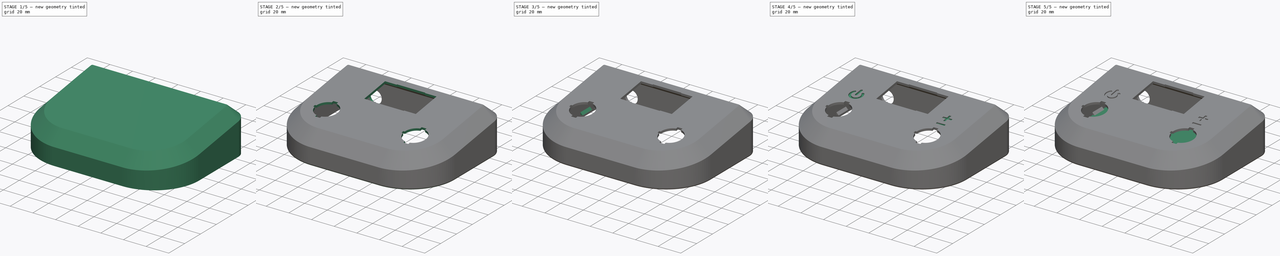
[diagram: build sequence overview — one tinted view per stage of 5, left to right]
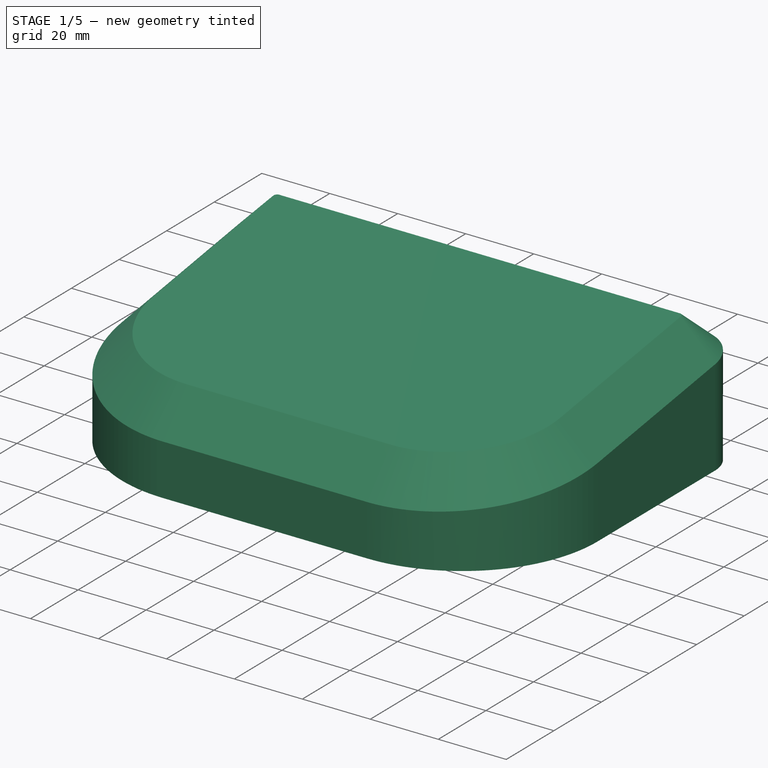
[diagram: stage 1 of 5 — iso view after this stage's code; geometry added in this stage tinted green]
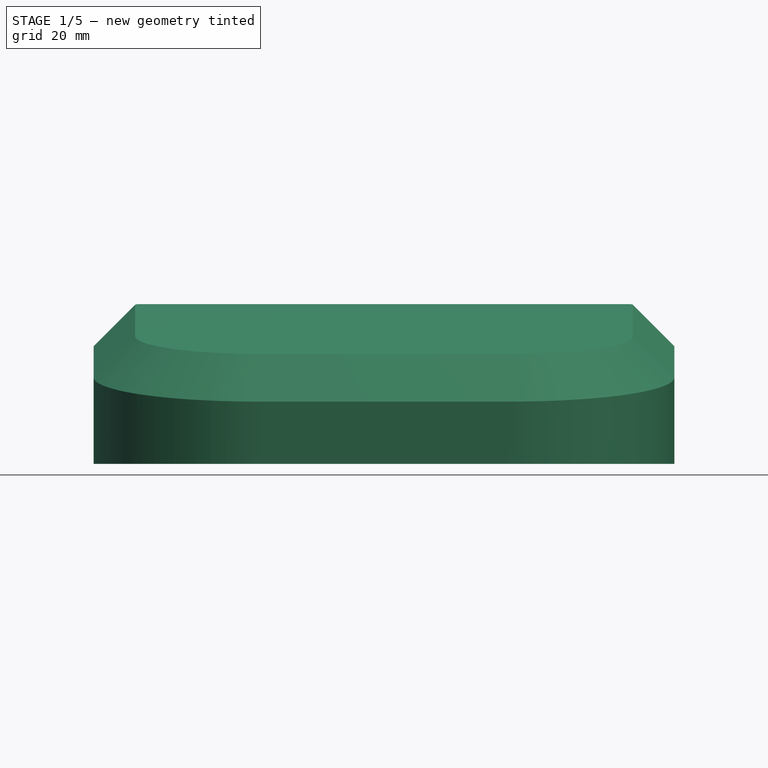
[diagram: stage 1 of 5 — front view after this stage's code; geometry added in this stage tinted green]
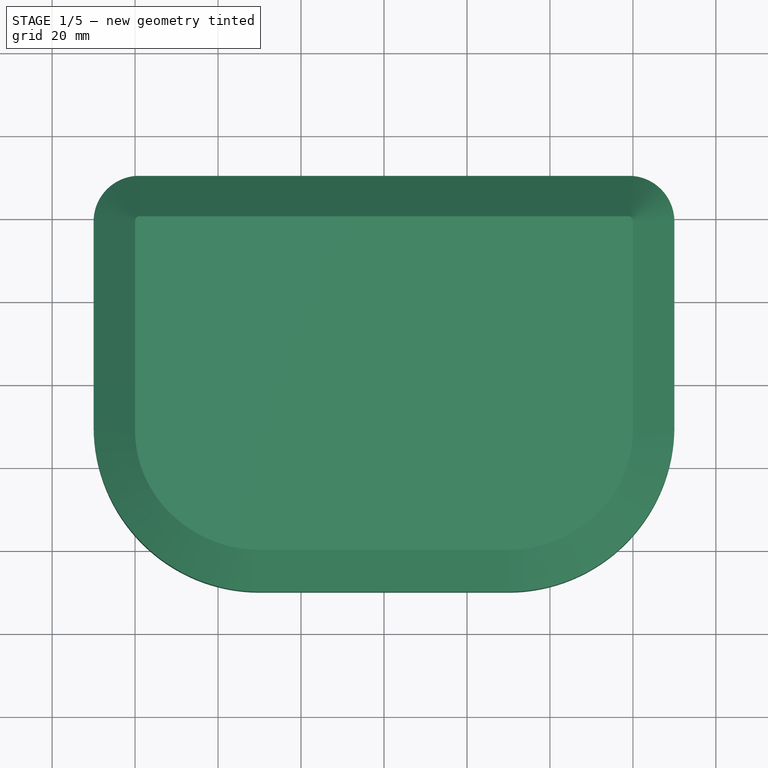
[diagram: stage 1 of 5 — top view after this stage's code; geometry added in this stage tinted green]
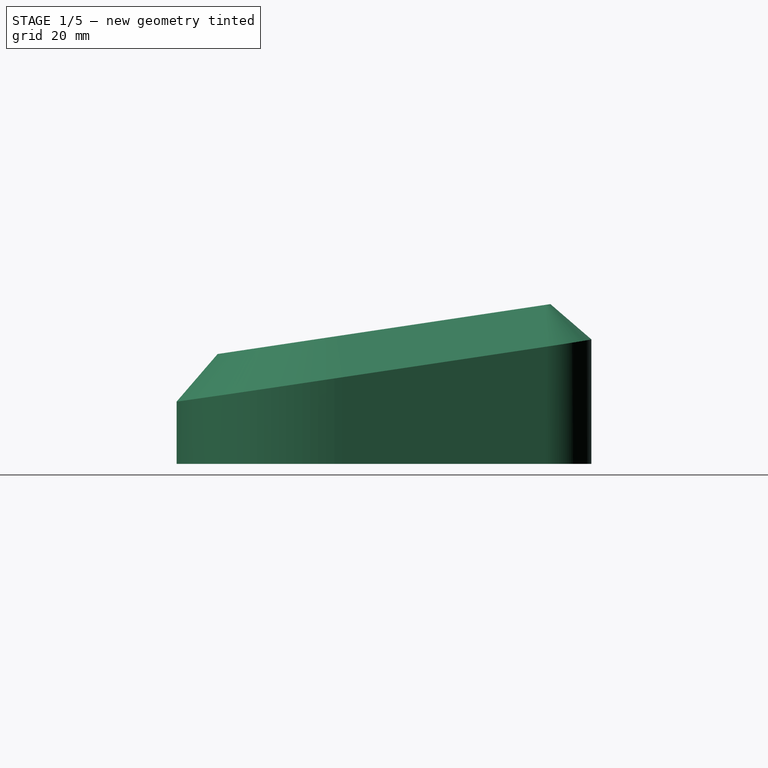
[diagram: stage 1 of 5 — right view after this stage's code; geometry added in this stage tinted green]
FCSTD DOCUMENT  (FreeCAD 0.19R24291 (Git))
Label: enclosure
License: All rights reserved
LicenseURL: http://en.wikipedia.org/wiki/All_rights_reserved
objects: Sketcher::SketchObject×22, Part::Feature×22, PartDesign::LinearPattern×12, PartDesign::Pocket×11, PartDesign::Pad×8, Part::Part2DObjectPython×7, PartDesign::MultiTransform×6, PartDesign::Mirrored×3, PartDesign::Fillet×3, PartDesign::Body×2, Part::FeaturePython×2, PartDesign::Chamfer×2, Spreadsheet::Sheet×1, PartDesign::Draft×1, PartDesign::Thickness×1
note: 128 computed .brp shape members not serialized (recipe doc carries the construction recipe); baked Part::Feature solids carry a one-line shape summary decoded from their .brp

FEATURE [Sketcher::SketchObject] Sketch
  FullyConstrained = true
  MapMode = 5
  Support = -> [XY_Plane]
  expr: .Constraints.width = <<args>>.width
  expr: Constraints[5] = <<args>>.depth
  expr: Constraints[10] = <<args>>.depth / 2
  expr: Constraints[11] = <<args>>.width / 2
  sketch-geometry (4):
    g0: LineSegment StartX=-70 StartY=-50 StartZ=0 EndX=-70 EndY=50 EndZ=0
    g1: LineSegment StartX=-70 StartY=50 StartZ=0 EndX=70 EndY=50 EndZ=0
    g2: LineSegment StartX=70 StartY=50 StartZ=0 EndX=70 EndY=-50 EndZ=0
    g3: LineSegment StartX=70 StartY=-50 StartZ=0 EndX=-70 EndY=-50 EndZ=0
  constraints (12):
    c: Vertical(g0)
    c: Vertical(g2)
    c: Horizontal(g1)
    c: Horizontal(g3)
    c: DistanceX(g0,g2) = 140  'width'
    c: Distance(g3,g1) = 100
    c: Coincident(g0,g1)
    c: Coincident(g1,g2)
    c: Coincident(g0,g3)
    c: Coincident(g3,g2)
    c: Distance(g-1,g1) = 50
    c: Distance(g-1,g0) = 70
FEATURE [Spreadsheet::Sheet] Spreadsheet  label="args"
  cells = A1=Case; C1=Switch; E1=AMP Meter; G1=Jack; I1=Text; K1=Latch; A2=Width; B2(width)==140mm; C2=Diameter; D2(switchDiameter)==19.75mm; E2=Width; F2(meterWidth)==45.5mm; G2=Diameter; H2(jackDiameter)==11.25mm; I2=Depth; J2(textDepth)==1mm; K2=Width; L2(latchWidth)==4mm; A3=Depth; B3(depth)==100mm; C3=Key Depth; D3(switchKeyDepth)==1.25mm; E3=Depth; F3(meterDepth)==26.5mm; I3=Height; J3(textHeight)==6mm; K3=Depth; L3(latchDepth)==1mm; A4=Height; B4(height)==40mm; C4=Key Width; D4(switchKeyWidth)==2.25mm; E4=Clasp Width; F4(meterClaspWidth)==25mm; A5=Front Height; B5(front)==25mm; C5=Clasp Width; D5(switchClaspWidth)==4.25mm; E5=Clasp Depth; F5(meterClaspDepth)==0.5mm; A6=Front Radius; B6(radiusFront)==40mm; C6=Clasp Depth; D6(switchClaspDepth)==2mm; A7=Back Radius; B7(radiusBack)==11mm; A8=Wall; B8(wall)==2mm; A9=Floor; B9(floor)==3mm; A10=Tolerance; B10(tolerance)==0.2mm; A11=Chamfer Size; B11(chamfer)==10mm; A12=Chamfer Angle; B12(chamferAngle)==45°; A13=Draft Angle; B13(faceAngle)==90° - atan(depth / (height - front))
FEATURE [PartDesign::Pad] Pad
  AllowMultiFace = false
  Direction = (1,1,1)
  Length = 40
  Length2 = 100
  Profile = -> Sketch
  Type = 0
  expr: Length = <<args>>.height
FEATURE [PartDesign::Draft] Draft
  Angle = 8.53
  Base = -> Pad [Face6]
  BaseFeature = -> Pad
  NeutralPlane = -> Pad [Face2]
  Reversed = true
  SupportTransform = false
FEATURE [PartDesign::Body] Body001  label="bottom"
  Group = -> [Sketch003,Pad001,Sketch015,Pad003,MultiTransform002,LinearPattern004,LinearPattern005,Sketch020,Pad006,LinearPattern010,Sketch021,Pad007,MultiTransform005,LinearPattern011,Mirrored004]
  Origin = -> Origin001
  Tip = -> MultiTransform005
FEATURE [Part::Feature] path4  label="Standby Path"
  shape: bbox 46.41 x 40.06 x 2e-07 mm, 1 faces, 0 solids (baked)
FEATURE [Part::Feature] line6  label="Standby Line"
  shape: bbox 7.937 x 33.87 x 2e-07 mm, 1 faces, 0 solids (baked)
FEATURE [Part::FeaturePython] Clone003  label="Standby Path 19%"  # Draft clone (typed FeaturePython)
  AttacherType = Attacher::AttachEngine3D
  Fuse = false
  Objects = -> [path4,line6]
  Scale = (0.18,0.18,0.18)
FEATURE [Part::FeaturePython] Clone  label="Standby Path 25%"  # Draft clone (typed FeaturePython)
  AttacherType = Attacher::AttachEngine3D
  Fuse = false
  Objects = -> [path4,line6]
  Scale = (0.25,0.25,0.25)
FEATURE [Part::Part2DObjectPython] ShapeString007  label="Plus String 15mm"  # Draft 2D object (typed FeaturePython)
  FontFile = <path>
  Size = 15
  String = +
  Tracking = 0
FEATURE [Part::Part2DObjectPython] ShapeString008  label="Minus String 15mm"  # Draft 2D object (typed FeaturePython)
  FontFile = <path>
  Size = 15
  String = _
  Tracking = 0
FEATURE [Part::Part2DObjectPython] Clone2D  label="Minus String 15mm (2D)"  # Draft 2D object (typed FeaturePython)
  Fuse = false
  Objects = -> [ShapeString008]
  Scale = (1.1,1.5,1)
FEATURE [PartDesign::Fillet] Fillet001  label="Back Fillet"
  Base = -> Draft [Edge5,Edge2]
  BaseFeature = -> Draft
  Radius = 11
  SupportTransform = false
  expr: Radius = Spreadsheet.radiusBack
FEATURE [PartDesign::Fillet] Fillet002  label="Front Fillet"
  Base = -> Fillet001 [Edge12,Edge3]
  BaseFeature = -> Fillet001
  Radius = 40
  SupportTransform = false
  expr: Radius = Spreadsheet.radiusFront
FEATURE [PartDesign::Thickness] Thickness
  Base = -> Fillet002 [Face2]
  BaseFeature = -> Fillet002
  Intersection = false
  Join = 0
  Mode = 0
  Reversed = true
  SupportTransform = false
  Value = 2
  expr: Value = <<args>>.wall
FEATURE [PartDesign::Chamfer] Chamfer  label="Outside Chamfer"
  Angle = 45
  Base = -> Thickness [Edge10]
  BaseFeature = -> Thickness
  ChamferType = 0
  FlipDirection = true
  Size = 10
  Size2 = 1
  SupportTransform = false
  expr: Angle = <<args>>.chamferAngle
  expr: Size = Spreadsheet.chamfer
FEATURE [PartDesign::Chamfer] Chamfer001  label="Inside Chamfer"
  Angle = 45
  Base = -> Chamfer [Edge59]
  BaseFeature = -> Chamfer
  ChamferType = 0
  FlipDirection = false
  Size = 10.75
  Size2 = 1
  SupportTransform = false
  expr: Size = <<args>>.chamfer * 1.075
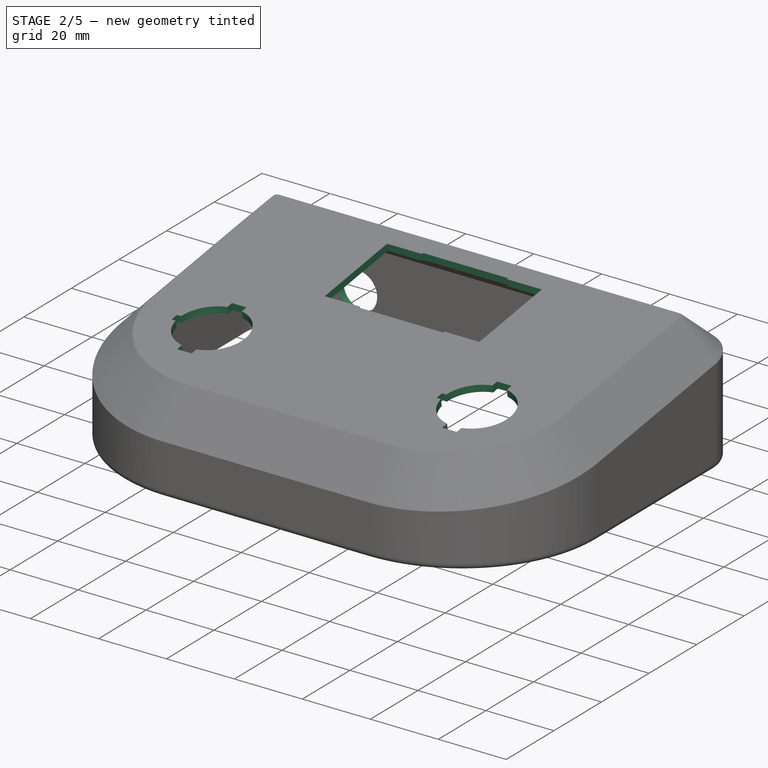
[diagram: stage 2 of 5 — iso view after this stage's code; geometry added in this stage tinted green]
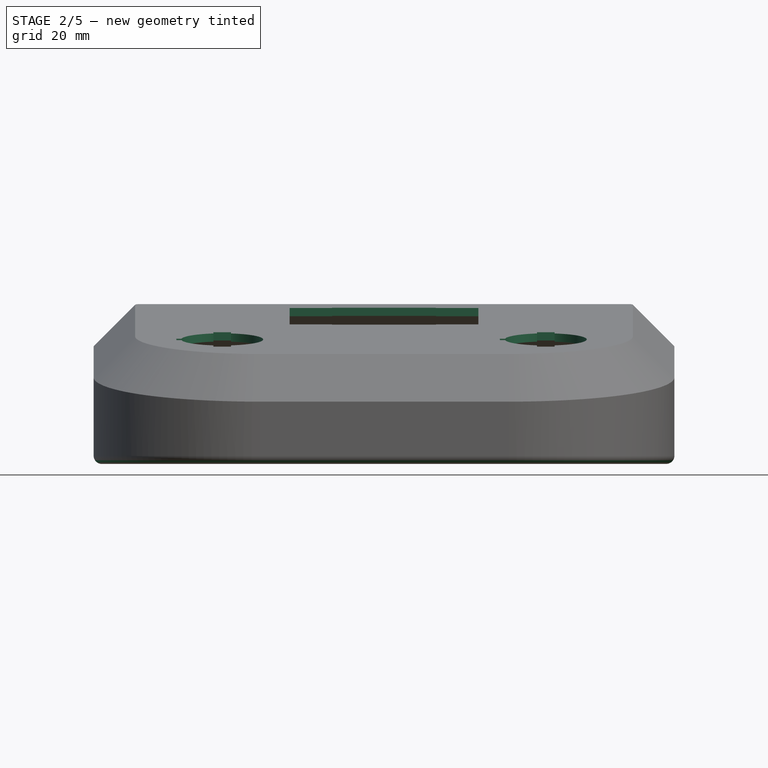
[diagram: stage 2 of 5 — front view after this stage's code; geometry added in this stage tinted green]
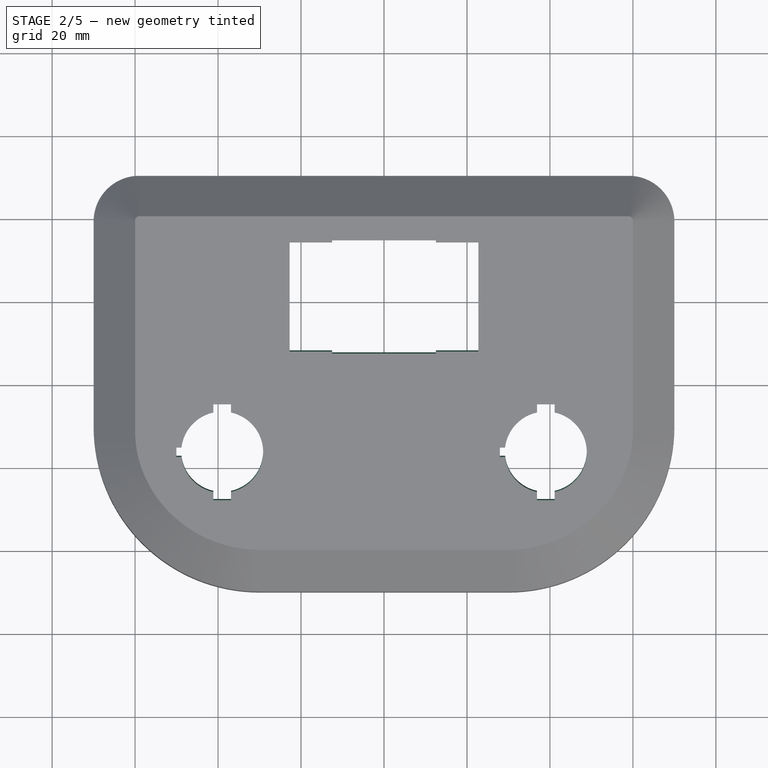
[diagram: stage 2 of 5 — top view after this stage's code; geometry added in this stage tinted green]
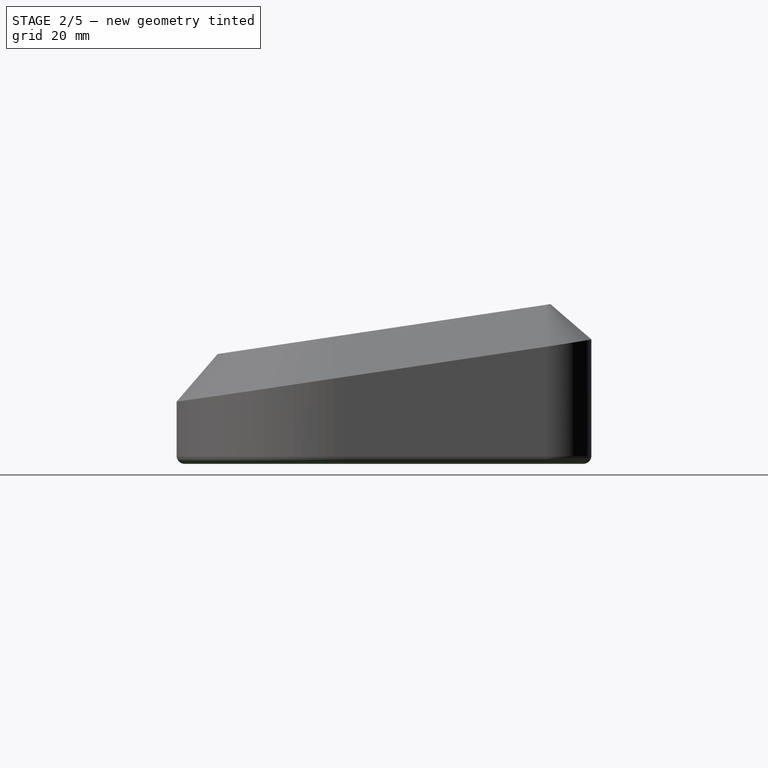
[diagram: stage 2 of 5 — right view after this stage's code; geometry added in this stage tinted green]
FEATURE [Sketcher::SketchObject] Sketch002  label="Jacks Sketch"
  FullyConstrained = true
  MapMode = 5
  Placement = pos=(0,50,0) rot=(0,0.707107,0.707107;3.14159rad)
  Support = -> [Chamfer001]
  expr: Constraints[1] = <<args>>.jackDiameter / 2
  expr: Constraints[3] = <<args>>.width / 2 - Spreadsheet.radiusFront + <<args>>.jackDiameter
  expr: Constraints[2] = (<<args>>.height - <<args>>.radiusBack) / 2
  sketch-geometry (2):
    g0: Circle CenterX=-41.25 CenterY=14.5 CenterZ=0 NormalX=0 NormalY=0 NormalZ=1 AngleXU=0 Radius=5.625
    g1: Circle CenterX=41.25 CenterY=14.5 CenterZ=0 NormalX=0 NormalY=0 NormalZ=1 AngleXU=0 Radius=5.625
  constraints (5):
    c: Equal(g1,g0)
    c: Radius(g1) = 5.625
    c: DistanceY(g-1,g0) = 14.5
    c: Distance(g1,g-2) = 41.25
    c: Symmetric(g1,g0,g-2)
FEATURE [PartDesign::Fillet] Fillet
  Base = -> Chamfer001 [Edge15]
  BaseFeature = -> Chamfer001
  Radius = 1.99
  SupportTransform = false
  expr: Radius = <<args>>.wall - 0.01mm
FEATURE [PartDesign::Pocket] Pocket  label="Jack Pocket"
  BaseFeature = -> Fillet
  Length = 2
  Length2 = 100
  Profile = -> Sketch002
  Type = 0
  expr: Length = <<args>>.wall
FEATURE [Sketcher::SketchObject] Sketch004  label="Meter Sketch"
  FullyConstrained = true
  MapMode = 5
  Placement = pos=(0,-4.76741,31.7856) rot=(1,0,0;0.148877rad)
  Support = -> [Pocket]
  expr: Constraints[31] = <<args>>.meterClaspWidth
  expr: Constraints[28] = <<args>>.meterClaspDepth
  expr: Constraints[32] = <<args>>.meterWidth / 2 - <<args>>.meterClaspWidth / 2
  expr: Constraints[3] = <<args>>.meterWidth
  expr: Constraints[4] = <<args>>.meterWidth / 2
  expr: Constraints[2] = <<args>>.meterDepth
  expr: Constraints[5] = <<args>>.depth / 2 - <<args>>.meterDepth - Spreadsheet.radiusBack
  sketch-geometry (12):
    g0: LineSegment StartX=22.75 StartY=39 StartZ=0 EndX=22.75 EndY=12.5 EndZ=0
    g1: LineSegment StartX=-22.75 StartY=12.5 StartZ=0 EndX=-22.75 EndY=39 EndZ=0
    g2: LineSegment StartX=22.75 StartY=39 StartZ=0 EndX=12.5 EndY=39 EndZ=0
    g3: LineSegment StartX=12.5 StartY=39 StartZ=0 EndX=12.5 EndY=39.5 EndZ=0
    g4: LineSegment StartX=12.5 StartY=39.5 StartZ=0 EndX=-12.5 EndY=39.5 EndZ=0
    g5: LineSegment StartX=-12.5 StartY=39.5 StartZ=0 EndX=-12.5 EndY=39 EndZ=0
    g6: LineSegment StartX=-12.5 StartY=39 StartZ=0 EndX=-22.75 EndY=39 EndZ=0
    g7: LineSegment StartX=22.75 StartY=12.5 StartZ=0 EndX=12.5 EndY=12.5 EndZ=0
    g8: LineSegment StartX=12.5 StartY=12.5 StartZ=0 EndX=12.5 EndY=12 EndZ=0
    g9: LineSegment StartX=12.5 StartY=12 StartZ=0 EndX=-12.5 EndY=12 EndZ=0
    g10: LineSegment StartX=-12.5 StartY=12 StartZ=0 EndX=-12.5 EndY=12.5 EndZ=0
    g11: LineSegment StartX=-12.5 StartY=12.5 StartZ=0 EndX=-22.75 EndY=12.5 EndZ=0
  constraints (36):
    c: Vertical(g0)
    c: Vertical(g1)
    c: DistanceY(g1,g1) = 26.5
    c: DistanceX(g1,g0) = 45.5
    c: Distance(g1,g-2) = 22.75
    c: Distance(g1,g-1) = 12.5
    c: Coincident(g0,g2)
    c: Horizontal(g2)
    c: Coincident(g2,g3)
    c: Vertical(g3)
    c: Coincident(g3,g4)
    c: Horizontal(g4)
    c: Coincident(g4,g5)
    c: Vertical(g5)
    c: Coincident(g5,g6)
    c: Coincident(g6,g1)
    c: Horizontal(g6)
    c: Coincident(g0,g7)
    c: Horizontal(g7)
    c: Coincident(g7,g8)
    c: Vertical(g8)
    c: Coincident(g8,g9)
    c: Horizontal(g9)
    c: Coincident(g9,g10)
    c: Coincident(g10,g11)
    c: Coincident(g11,g1)
    c: Horizontal(g11)
    c: Vertical(g10)
    c: DistanceY(g5,g5) = 0.5
    c: Equal(g5,g10)
    c: Equal(g4,g9)
    c: DistanceX(g4,g4) = 25
    c: DistanceX(g6,g6) = 10.25
    c: Equal(g6,g11)
    c: Equal(g5,g3)
    c: Equal(g5,g8)
FEATURE [PartDesign::Pocket] Pocket001  label="Meter Pocket"
  BaseFeature = -> Pocket
  Length = 2
  Length2 = 100
  Profile = -> Sketch004
  Type = 0
  expr: Length = <<args>>.wall
FEATURE [Part::Part2DObjectPython] ShapeString  label="Ion Module"  # Draft 2D object (typed FeaturePython)
  AttachmentOffset = pos=(-58,22,0) rot=(0,0,1;0rad)
  FontFile = <path>
  MapMode = 5
  Placement = pos=(58,50,22) rot=(0,0.707107,0.707107;3.14159rad)
  Size = 6
  String = ION MODULE
  Support = -> [Pocket001]
  Tracking = 0
FEATURE [Part::Part2DObjectPython] ShapeString006  label="Power 15 VDC"  # Draft 2D object (typed FeaturePython)
  AttachmentOffset = pos=(10,22,0) rot=(0,0,1;0rad)
  FontFile = <path>
  MapMode = 5
  Placement = pos=(-10,50,22) rot=(0,0.707107,0.707107;3.14159rad)
  Size = 6
  String = POWER 15 VDC
  Support = -> [Pocket001]
  Tracking = 0
FEATURE [Sketcher::SketchObject] Sketch007  label="Switch Sketch"
  FullyConstrained = true
  MapMode = 5
  Placement = pos=(0,-4.76741,31.7856) rot=(1,0,0;0.148877rad)
  Support = -> [Pocket001]
  expr: Constraints[36] = <<args>>.width / 2 - <<args>>.radiusFront + <<args>>.radiusBack - <<args>>.wall
  expr: Constraints[35] = <<args>>.depth / 2 - Spreadsheet.radiusFront + <<args>>.wall
  expr: Constraints[33] = <<args>>.switchKeyWidth
  expr: Constraints[32] = <<args>>.switchClaspDepth
  expr: Constraints[29] = <<args>>.switchDiameter / 2
  expr: Constraints[31] = <<args>>.switchKeyDepth
  expr: Constraints[30] = <<args>>.switchClaspWidth
  sketch-geometry (24):
    g0: LineSegment StartX=-41.125 StartY=-2.35635 StartZ=0 EndX=-41.125 EndY=-0.356349 EndZ=0
    g1: LineSegment StartX=-41.125 StartY=-0.356349 StartZ=0 EndX=-36.875 EndY=-0.356349 EndZ=0
    g2: LineSegment StartX=-36.875 StartY=-0.356349 StartZ=0 EndX=-36.875 EndY=-2.35635 EndZ=0
    g3: LineSegment StartX=-36.875 StartY=-21.6437 StartZ=0 EndX=-36.875 EndY=-23.6437 EndZ=0
    g4: LineSegment StartX=-36.875 StartY=-23.6437 StartZ=0 EndX=-41.125 EndY=-23.6437 EndZ=0
    g5: LineSegment StartX=-41.125 StartY=-23.6437 StartZ=0 EndX=-41.125 EndY=-21.6437 EndZ=0
    g6: LineSegment StartX=-48.8107 StartY=-13.125 StartZ=0 EndX=-50.0607 EndY=-13.125 EndZ=0
    g7: LineSegment StartX=-50.0607 StartY=-13.125 StartZ=0 EndX=-50.0607 EndY=-10.875 EndZ=0
    g8: LineSegment StartX=-50.0607 StartY=-10.875 StartZ=0 EndX=-48.8107 EndY=-10.875 EndZ=0
    g9: ArcOfCircle CenterX=-39 CenterY=-12 CenterZ=0 NormalX=0 NormalY=0 NormalZ=1 AngleXU=0 Radius=9.875 StartAngle=4.92928 EndAngle=7.6371
    g10: ArcOfCircle CenterX=-39 CenterY=-12 CenterZ=0 NormalX=0 NormalY=0 NormalZ=1 AngleXU=0 Radius=9.875 StartAngle=3.25576 EndAngle=4.4955
    g11: ArcOfCircle CenterX=-39 CenterY=-12 CenterZ=0 NormalX=0 NormalY=0 NormalZ=1 AngleXU=0 Radius=9.875 StartAngle=1.78768 EndAngle=3.02742
    g12: LineSegment StartX=36.875 StartY=-2.35635 StartZ=0 EndX=36.875 EndY=-0.356349 EndZ=0
    g13: LineSegment StartX=36.875 StartY=-0.356349 StartZ=0 EndX=41.125 EndY=-0.356349 EndZ=0
    g14: LineSegment StartX=41.125 StartY=-0.356349 StartZ=0 EndX=41.125 EndY=-2.35635 EndZ=0
    g15: LineSegment StartX=41.125 StartY=-21.6437 StartZ=0 EndX=41.125 EndY=-23.6437 EndZ=0
    g16: LineSegment StartX=41.125 StartY=-23.6437 StartZ=0 EndX=36.875 EndY=-23.6437 EndZ=0
    g17: LineSegment StartX=36.875 StartY=-23.6437 StartZ=0 EndX=36.875 EndY=-21.6437 EndZ=0
    g18: LineSegment StartX=29.1893 StartY=-13.125 StartZ=0 EndX=27.9393 EndY=-13.125 EndZ=0
    g19: LineSegment StartX=27.9393 StartY=-13.125 StartZ=0 EndX=27.9393 EndY=-10.875 EndZ=0
    g20: LineSegment StartX=27.9393 StartY=-10.875 StartZ=0 EndX=29.1893 EndY=-10.875 EndZ=0
    g21: ArcOfCircle CenterX=39 CenterY=-12 CenterZ=0 NormalX=0 NormalY=0 NormalZ=1 AngleXU=0 Radius=9.875 StartAngle=4.92928 EndAngle=7.6371
    g22: ArcOfCircle CenterX=39 CenterY=-12 CenterZ=0 NormalX=0 NormalY=0 NormalZ=1 AngleXU=0 Radius=9.875 StartAngle=3.25576 EndAngle=4.4955
    g23: ArcOfCircle CenterX=39 CenterY=-12 CenterZ=0 NormalX=0 NormalY=0 NormalZ=1 AngleXU=0 Radius=9.875 StartAngle=1.78768 EndAngle=3.02742
  constraints (73):
    c: Vertical(g0)
    c: Coincident(g1,g0)
    c: Horizontal(g1)
    c: Coincident(g2,g1)
    c: Vertical(g2)
    c: Vertical(g3)
    c: Coincident(g4,g3)
    c: Horizontal(g4)
    c: Coincident(g5,g4)
    c: Vertical(g5)
    c: Horizontal(g6)
    c: Coincident(g7,g6)
    c: Vertical(g7)
    c: Coincident(g8,g7)
    c: Horizontal(g8)
    c: Coincident(g9,g3)
    c: Coincident(g9,g2)
    c: Coincident(g10,g9)
    c: Coincident(g10,g5)
    c: Coincident(g10,g6)
    c: Coincident(g11,g9)
    c: Coincident(g11,g8)
    c: Coincident(g11,g0)
    c: Equal(g4,g1)
    c: Equal(g3,g5)
    c: Equal(g3,g2)
    c: Equal(g10,g9)
    c: Equal(g10,g11)
    c: Equal(g3,g0)
    c: Radius(g10) = 9.875
    c: DistanceX(g4,g4) = 4.25
    c: DistanceX(g8,g8) = 1.25
    c: DistanceY(g3,g3) = 2
    c: DistanceY(g7,g7) = 2.25
    c: Equal(g8,g6)
    c: Distance(g9,g-1) = 12
    c: Distance(g9,g-2) = 39
    c: Vertical(g12)
    c: Coincident(g13,g12)
    c: Horizontal(g13)
    c: Coincident(g14,g13)
    c: Vertical(g14)
    c: Vertical(g15)
    c: Coincident(g16,g15)
    c: Horizontal(g16)
    c: Coincident(g17,g16)
    c: Vertical(g17)
    c: Horizontal(g18)
    c: Coincident(g19,g18)
    c: Vertical(g19)
    c: Coincident(g20,g19)
    c: Horizontal(g20)
    c: Coincident(g21,g15)
    c: Coincident(g21,g14)
    c: Coincident(g22,g21)
    c: Coincident(g22,g17)
    c: Coincident(g22,g18)
    c: Coincident(g23,g21)
    c: Coincident(g23,g20)
    c: Coincident(g23,g12)
    c: Equal(g16,g13)
    c: Equal(g15,g17)
    c: Equal(g15,g14)
    c: Equal(g22,g21)
    c: Equal(g22,g23)
    c: Equal(g15,g12)
    c: Equal(g10,g22) = 9.875
    c: Equal(g4,g16) = 4
    c: Equal(g8,g20) = 1
    c: Equal(g3,g15) = 2
    c: Equal(g7,g19) = 2
    c: Equal(g20,g18)
    c: Symmetric(g9,g21,g-2)
FEATURE [PartDesign::Pocket] Pocket002  label="Switch Pocket"
  BaseFeature = -> Pocket001
  Length = 2
  Length2 = 100
  Profile = -> Sketch007
  Type = 0
  expr: Length = <<args>>.wall
FEATURE [Part::Part2DObjectPython] ShapeString004  label="Polarity"  # Draft 2D object (typed FeaturePython)
  AttachmentOffset = pos=(22,3,0) rot=(0,0,1;0rad)
  FontFile = <path>
  MapMode = 5
  Placement = pos=(22,-1.8006,32.2306) rot=(1,0,0;0.148877rad)
  Size = 6
  String = POLARITY
  Support = -> [Pocket002]
  Tracking = 0
FEATURE [Part::Part2DObjectPython] ShapeString005  label="Power"  # Draft 2D object (typed FeaturePython)
  AttachmentOffset = pos=(-49,3,0) rot=(0,0,1;0rad)
  FontFile = <path>
  MapMode = 5
  Placement = pos=(-49,-1.8006,32.2306) rot=(1,0,0;0.148877rad)
  Size = 6
  String = POWER
  Support = -> [Pocket002]
  Tracking = 0
FEATURE [Sketcher::SketchObject] Sketch008  label="Polarity Sketch"
  FullyConstrained = false
  MapMode = 5
  Placement = pos=(0,-4.76741,31.7856) rot=(1,0,0;0.148877rad)
  Support = -> [Pocket002]
  sketch-geometry (89):
    g0: BSplineCurve PolesCount=3 KnotsCount=2 Degree=2 IsPeriodic=0
    g1: BSplineCurve PolesCount=3 KnotsCount=2 Degree=2 IsPeriodic=0
    g2: LineSegment StartX=22.6497 StartY=7.68125 StartZ=0 EndX=23.8716 EndY=7.68125 EndZ=0
    g3: LineSegment StartX=22.6497 StartY=3 StartZ=0 EndX=22.6497 EndY=7.68125 EndZ=0
    g4: LineSegment StartX=23.1983 StartY=3 StartZ=0 EndX=22.6497 EndY=3 EndZ=0
    g5: LineSegment StartX=23.1983 StartY=4.86949 StartZ=0 EndX=23.1983 EndY=3 EndZ=0
    g6: LineSegment StartX=23.7533 StartY=4.86949 StartZ=0 EndX=23.1983 EndY=4.86949 EndZ=0
    g7: BSplineCurve PolesCount=3 KnotsCount=2 Degree=2 IsPeriodic=0
    g8: LineSegment StartX=23.1983 StartY=5.34062 StartZ=0 EndX=23.6909 EndY=5.34062 EndZ=0
    g9: LineSegment StartX=23.1983 StartY=7.20581 StartZ=0 EndX=23.1983 EndY=5.34062 EndZ=0
    g10: LineSegment StartX=23.8114 StartY=7.20581 StartZ=0 EndX=23.1983 EndY=7.20581 EndZ=0
    g11: BSplineCurve PolesCount=3 KnotsCount=2 Degree=2 IsPeriodic=0
    g12: BSplineCurve PolesCount=3 KnotsCount=2 Degree=2 IsPeriodic=0
    g13: BSplineCurve PolesCount=3 KnotsCount=2 Degree=2 IsPeriodic=0
    g14: BSplineCurve PolesCount=3 KnotsCount=2 Degree=2 IsPeriodic=0
    g15: BSplineCurve PolesCount=3 KnotsCount=2 Degree=2 IsPeriodic=0
    g16: BSplineCurve PolesCount=3 KnotsCount=2 Degree=2 IsPeriodic=0
    g17: BSplineCurve PolesCount=3 KnotsCount=2 Degree=2 IsPeriodic=0
    g18: BSplineCurve PolesCount=3 KnotsCount=2 Degree=2 IsPeriodic=0
    g19: BSplineCurve PolesCount=3 KnotsCount=2 Degree=2 IsPeriodic=0
    g20: BSplineCurve PolesCount=3 KnotsCount=2 Degree=2 IsPeriodic=0
    g21: BSplineCurve PolesCount=3 KnotsCount=2 Degree=2 IsPeriodic=0
    g22: BSplineCurve PolesCount=3 KnotsCount=2 Degree=2 IsPeriodic=0
    g23: BSplineCurve PolesCount=3 KnotsCount=2 Degree=2 IsPeriodic=0
    g24: BSplineCurve PolesCount=3 KnotsCount=2 Degree=2 IsPeriodic=0
    g25: BSplineCurve PolesCount=3 KnotsCount=2 Degree=2 IsPeriodic=0
    g26: BSplineCurve PolesCount=3 KnotsCount=2 Degree=2 IsPeriodic=0
    g27: BSplineCurve PolesCount=3 KnotsCount=2 Degree=2 IsPeriodic=0
    g28: BSplineCurve PolesCount=3 KnotsCount=2 Degree=2 IsPeriodic=0
    g29: BSplineCurve PolesCount=3 KnotsCount=2 Degree=2 IsPeriodic=0
    g30: BSplineCurve PolesCount=3 KnotsCount=2 Degree=2 IsPeriodic=0
    g31: LineSegment StartX=31.7368 StartY=3 StartZ=0 EndX=31.7368 EndY=7.68125 EndZ=0
    g32: LineSegment StartX=34.3657 StartY=3 StartZ=0 EndX=31.7368 EndY=3 EndZ=0
    g33: LineSegment StartX=34.3657 StartY=3.49695 StartZ=0 EndX=34.3657 EndY=3 EndZ=0
    g34: LineSegment StartX=32.2854 StartY=3.49695 StartZ=0 EndX=34.3657 EndY=3.49695 EndZ=0
    g35: LineSegment StartX=32.2854 StartY=7.68125 StartZ=0 EndX=32.2854 EndY=3.49695 EndZ=0
    g36: LineSegment StartX=31.7368 StartY=7.68125 StartZ=0 EndX=32.2854 EndY=7.68125 EndZ=0
    g37: LineSegment StartX=38.1434 StartY=3 StartZ=0 EndX=37.5561 EndY=4.43277 EndZ=0
    g38: LineSegment StartX=38.7114 StartY=3 StartZ=0 EndX=38.1434 EndY=3 EndZ=0
    g39: LineSegment StartX=36.8569 StartY=7.68125 StartZ=0 EndX=38.7114 EndY=3 EndZ=0
    g40: LineSegment StartX=36.3944 StartY=7.68125 StartZ=0 EndX=36.8569 EndY=7.68125 EndZ=0
    g41: LineSegment StartX=34.5292 StartY=3 StartZ=0 EndX=36.3944 EndY=7.68125 EndZ=0
    g42: LineSegment StartX=35.0843 StartY=3 StartZ=0 EndX=34.5292 EndY=3 EndZ=0
    g43: LineSegment StartX=35.6651 StartY=4.43277 StartZ=0 EndX=35.0843 EndY=3 EndZ=0
    g44: LineSegment StartX=37.5561 StartY=4.43277 StartZ=0 EndX=35.6651 EndY=4.43277 EndZ=0
    g45: LineSegment StartX=37.3862 StartY=4.92757 StartZ=0 EndX=36.8376 EndY=6.39477 EndZ=0
    g46: LineSegment StartX=35.8587 StartY=4.92757 StartZ=0 EndX=37.3862 EndY=4.92757 EndZ=0
    g47: LineSegment StartX=36.4138 StartY=6.39477 StartZ=0 EndX=35.8587 EndY=4.92757 EndZ=0
    g48: BSplineCurve PolesCount=3 KnotsCount=2 Degree=2 IsPeriodic=0
    g49: BSplineCurve PolesCount=3 KnotsCount=2 Degree=2 IsPeriodic=0
    g50: LineSegment StartX=39.858 StartY=5.00717 StartZ=0 EndX=39.858 EndY=3 EndZ=0
    g51: LineSegment StartX=40.8412 StartY=5.00717 StartZ=0 EndX=39.858 EndY=5.00717 EndZ=0
    g52: LineSegment StartX=41.9835 StartY=3 StartZ=0 EndX=40.8412 EndY=5.00717 EndZ=0
    g53: LineSegment StartX=42.6332 StartY=3 StartZ=0 EndX=41.9835 EndY=3 EndZ=0
    g54: LineSegment StartX=41.351 StartY=5.16637 StartZ=0 EndX=42.6332 EndY=3 EndZ=0
    g55: BSplineCurve PolesCount=3 KnotsCount=2 Degree=2 IsPeriodic=0
    g56: BSplineCurve PolesCount=3 KnotsCount=2 Degree=2 IsPeriodic=0
    g57: BSplineCurve PolesCount=3 KnotsCount=2 Degree=2 IsPeriodic=0
    g58: LineSegment StartX=39.3094 StartY=7.68125 StartZ=0 EndX=40.6024 EndY=7.68125 EndZ=0
    g59: LineSegment StartX=39.3094 StartY=3 StartZ=0 EndX=39.3094 EndY=7.68125 EndZ=0
    g60: LineSegment StartX=39.858 StartY=3 StartZ=0 EndX=39.3094 EndY=3 EndZ=0
    g61: LineSegment StartX=39.858 StartY=5.47831 StartZ=0 EndX=40.6088 EndY=5.47831 EndZ=0
    g62: LineSegment StartX=39.858 StartY=7.19935 StartZ=0 EndX=39.858 EndY=5.47831 EndZ=0
    g63: LineSegment StartX=40.5701 StartY=7.19935 StartZ=0 EndX=39.858 EndY=7.19935 EndZ=0
    g64: BSplineCurve PolesCount=3 KnotsCount=2 Degree=2 IsPeriodic=0
    g65: BSplineCurve PolesCount=3 KnotsCount=2 Degree=2 IsPeriodic=0
    g66: BSplineCurve PolesCount=3 KnotsCount=2 Degree=2 IsPeriodic=0
    g67: BSplineCurve PolesCount=3 KnotsCount=2 Degree=2 IsPeriodic=0
    g68: LineSegment StartX=43.4399 StartY=3 StartZ=0 EndX=43.4399 EndY=7.68125 EndZ=0
    g69: LineSegment StartX=43.9885 StartY=3 StartZ=0 EndX=43.4399 EndY=3 EndZ=0
    g70: LineSegment StartX=43.9885 StartY=7.68125 StartZ=0 EndX=43.9885 EndY=3 EndZ=0
    g71: LineSegment StartX=43.4399 StartY=7.68125 StartZ=0 EndX=43.9885 EndY=7.68125 EndZ=0
    g72: LineSegment StartX=46.682 StartY=3 StartZ=0 EndX=46.1334 EndY=3 EndZ=0
    g73: LineSegment StartX=46.682 StartY=7.1929 StartZ=0 EndX=46.682 EndY=3 EndZ=0
    g74: LineSegment StartX=48.175 StartY=7.1929 StartZ=0 EndX=46.682 EndY=7.1929 EndZ=0
    g75: LineSegment StartX=48.175 StartY=7.68125 StartZ=0 EndX=48.175 EndY=7.1929 EndZ=0
    g76: LineSegment StartX=44.6382 StartY=7.68125 StartZ=0 EndX=48.175 EndY=7.68125 EndZ=0
    g77: LineSegment StartX=44.6382 StartY=7.1929 StartZ=0 EndX=44.6382 EndY=7.68125 EndZ=0
    g78: LineSegment StartX=46.1334 StartY=7.1929 StartZ=0 EndX=44.6382 EndY=7.1929 EndZ=0
    g79: LineSegment StartX=46.1334 StartY=3 StartZ=0 EndX=46.1334 EndY=7.1929 EndZ=0
    g80: LineSegment StartX=50.1477 StartY=5.34062 StartZ=0 EndX=51.4062 EndY=7.68125 EndZ=0
    g81: LineSegment StartX=48.8978 StartY=7.68125 StartZ=0 EndX=50.1477 EndY=5.34062 EndZ=0
    g82: LineSegment StartX=48.2976 StartY=7.68125 StartZ=0 EndX=48.8978 EndY=7.68125 EndZ=0
    g83: LineSegment StartX=49.8702 StartY=4.78989 StartZ=0 EndX=48.2976 EndY=7.68125 EndZ=0
    g84: LineSegment StartX=49.8702 StartY=3 StartZ=0 EndX=49.8702 EndY=4.78989 EndZ=0
    g85: LineSegment StartX=50.4252 StartY=3 StartZ=0 EndX=49.8702 EndY=3 EndZ=0
    g86: LineSegment StartX=50.4252 StartY=4.8157 StartZ=0 EndX=50.4252 EndY=3 EndZ=0
    g87: LineSegment StartX=52 StartY=7.68125 StartZ=0 EndX=50.4252 EndY=4.8157 EndZ=0
    g88: LineSegment StartX=51.4062 StartY=7.68125 StartZ=0 EndX=52 EndY=7.68125 EndZ=0
  constraints (134):
    c: Coincident(g0,g1)
    c: Coincident(g1,g2)
    c: Horizontal(g2)
    c: Coincident(g2,g3)
    c: Vertical(g3)
    c: Coincident(g3,g4)
    c: Horizontal(g4)
    c: Coincident(g4,g5)
    c: Vertical(g5)
    c: Coincident(g5,g6)
    c: Horizontal(g6)
    c: Coincident(g6,g7)
    c: Coincident(g7,g0)
    c: Horizontal(g8)
    c: Coincident(g8,g9)
    c: Vertical(g9)
    c: Coincident(g9,g10)
    c: Horizontal(g10)
    c: Coincident(g10,g11)
    c: Coincident(g11,g12)
    c: Coincident(g12,g13)
    c: Coincident(g13,g14)
    c: Coincident(g14,g8)
    c: Coincident(g15,g16)
    c: Coincident(g16,g17)
    c: Coincident(g17,g18)
    c: Coincident(g18,g19)
    c: Coincident(g19,g20)
    c: Coincident(g20,g21)
    c: Coincident(g21,g22)
    c: Coincident(g22,g15)
    c: Coincident(g23,g24)
    c: Coincident(g24,g25)
    c: Coincident(g25,g26)
    c: Coincident(g26,g27)
    c: Coincident(g27,g28)
    c: Coincident(g28,g29)
    c: Coincident(g29,g30)
    c: Coincident(g30,g23)
    c: Vertical(g31)
    c: Coincident(g31,g32)
    c: Horizontal(g32)
    c: Coincident(g32,g33)
    c: Vertical(g33)
    c: Coincident(g33,g34)
    c: Horizontal(g34)
    c: Coincident(g34,g35)
    c: Vertical(g35)
    c: Coincident(g35,g36)
    c: Horizontal(g36)
    c: Coincident(g36,g31)
    c: Coincident(g37,g38)
    c: Horizontal(g38)
    c: Coincident(g38,g39)
    c: Coincident(g39,g40)
    c: Horizontal(g40)
    c: Coincident(g40,g41)
    c: Coincident(g41,g42)
    c: Horizontal(g42)
    c: Coincident(g42,g43)
    c: Coincident(g43,g44)
    c: Horizontal(g44)
    c: Coincident(g44,g37)
    c: Coincident(g45,g46)
    c: Horizontal(g46)
    c: Coincident(g46,g47)
    c: Coincident(g47,g48)
    c: Coincident(g48,g49)
    c: Coincident(g49,g45)
    c: Vertical(g50)
    c: Coincident(g50,g51)
    c: Horizontal(g51)
    c: Coincident(g51,g52)
    c: Coincident(g52,g53)
    c: Horizontal(g53)
    c: Coincident(g53,g54)
    c: Coincident(g54,g55)
    c: Coincident(g55,g56)
    c: Coincident(g56,g57)
    c: Coincident(g57,g58)
    c: Horizontal(g58)
    c: Coincident(g58,g59)
    c: Vertical(g59)
    c: Coincident(g59,g60)
    c: Horizontal(g60)
    c: Coincident(g60,g50)
    c: Horizontal(g61)
    c: Coincident(g61,g62)
    c: Vertical(g62)
    c: Coincident(g62,g63)
    c: Horizontal(g63)
    c: Coincident(g63,g64)
    c: Coincident(g64,g65)
    c: Coincident(g65,g66)
    c: Coincident(g66,g67)
    c: Coincident(g67,g61)
    c: Vertical(g68)
    c: Coincident(g68,g69)
    c: Horizontal(g69)
    c: Coincident(g69,g70)
    c: Vertical(g70)
    c: Coincident(g70,g71)
    c: Horizontal(g71)
    c: Coincident(g71,g68)
    c: Horizontal(g72)
    c: Coincident(g72,g73)
    c: Vertical(g73)
    c: Coincident(g73,g74)
    c: Horizontal(g74)
    c: Coincident(g74,g75)
    c: Vertical(g75)
    c: Coincident(g75,g76)
    c: Horizontal(g76)
    c: Coincident(g76,g77)
    c: Vertical(g77)
    c: Coincident(g77,g78)
    c: Horizontal(g78)
    c: Coincident(g78,g79)
    c: Vertical(g79)
    c: Coincident(g79,g72)
    c: Coincident(g80,g81)
    c: Coincident(g81,g82)
    c: Horizontal(g82)
    c: Coincident(g82,g83)
    c: Coincident(g83,g84)
    c: Vertical(g84)
    c: Coincident(g84,g85)
    c: Horizontal(g85)
    c: Coincident(g85,g86)
    c: Vertical(g86)
    c: Coincident(g86,g87)
    c: Coincident(g87,g88)
    c: Horizontal(g88)
    c: Coincident(g88,g80)
FEATURE [Sketcher::SketchObject] Sketch011  label="15 VDC Sketch"
  AttachmentOffset = pos=(-5,2,0) rot=(0,0,1;3.14159rad)
  FullyConstrained = false
  MapMode = 5
  Placement = pos=(5,50,2) rot=(1,0,0;4.71239rad)
  Support = -> [Pocket002]
  sketch-geometry (66):
    g0: LineSegment StartX=-36.9537 StartY=-22 StartZ=0 EndX=-36.431 EndY=-22 EndZ=0
    g1: LineSegment StartX=-36.9537 StartY=-26.6812 StartZ=0 EndX=-36.9537 EndY=-22 EndZ=0
    g2: LineSegment StartX=-36.502 StartY=-26.6812 StartZ=0 EndX=-36.9537 EndY=-26.6812 EndZ=0
    g3: LineSegment StartX=-35.2521 StartY=-25.6852 StartZ=0 EndX=-36.502 EndY=-26.6812 EndZ=0
    g4: LineSegment StartX=-35.536 StartY=-25.3044 StartZ=0 EndX=-35.2521 EndY=-25.6852 EndZ=0
    g5: BSplineCurve PolesCount=3 KnotsCount=2 Degree=2 IsPeriodic=0
    g6: BSplineCurve PolesCount=3 KnotsCount=2 Degree=2 IsPeriodic=0
    g7: BSplineCurve PolesCount=3 KnotsCount=2 Degree=2 IsPeriodic=0
    g8: LineSegment StartX=-36.431 StartY=-22 StartZ=0 EndX=-36.431 EndY=-25.3173 EndZ=0
    g9: BSplineCurve PolesCount=3 KnotsCount=2 Degree=2 IsPeriodic=0
    g10: BSplineCurve PolesCount=3 KnotsCount=2 Degree=2 IsPeriodic=0
    g11: LineSegment StartX=-39.5418 StartY=-26.1864 StartZ=0 EndX=-39.4213 EndY=-24.8161 EndZ=0
    g12: LineSegment StartX=-41.4285 StartY=-26.1864 StartZ=0 EndX=-39.5418 EndY=-26.1864 EndZ=0
    g13: LineSegment StartX=-41.4285 StartY=-26.6812 StartZ=0 EndX=-41.4285 EndY=-26.1864 EndZ=0
    g14: LineSegment StartX=-39.0835 StartY=-26.6812 StartZ=0 EndX=-41.4285 EndY=-26.6812 EndZ=0
    g15: LineSegment StartX=-38.905 StartY=-24.517 StartZ=0 EndX=-39.0835 EndY=-26.6812 EndZ=0
    g16: LineSegment StartX=-39.1825 StartY=-24.3428 StartZ=0 EndX=-38.905 EndY=-24.517 EndZ=0
    g17: BSplineCurve PolesCount=3 KnotsCount=2 Degree=2 IsPeriodic=0
    g18: BSplineCurve PolesCount=3 KnotsCount=2 Degree=2 IsPeriodic=0
    g19: BSplineCurve PolesCount=3 KnotsCount=2 Degree=2 IsPeriodic=0
    g20: BSplineCurve PolesCount=3 KnotsCount=2 Degree=2 IsPeriodic=0
    g21: BSplineCurve PolesCount=3 KnotsCount=2 Degree=2 IsPeriodic=0
    g22: BSplineCurve PolesCount=3 KnotsCount=2 Degree=2 IsPeriodic=0
    g23: LineSegment StartX=-38.7931 StartY=-22.256 StartZ=0 EndX=-38.7931 EndY=-22.7723 EndZ=0
    g24: BSplineCurve PolesCount=3 KnotsCount=2 Degree=2 IsPeriodic=0
    g25: BSplineCurve PolesCount=3 KnotsCount=2 Degree=2 IsPeriodic=0
    g26: BSplineCurve PolesCount=3 KnotsCount=2 Degree=2 IsPeriodic=0
    g27: BSplineCurve PolesCount=3 KnotsCount=2 Degree=2 IsPeriodic=0
    g28: LineSegment StartX=-47.0757 StartY=-26.6812 StartZ=0 EndX=-47.6673 EndY=-26.6812 EndZ=0
    g29: LineSegment StartX=-45.9978 StartY=-23.6716 StartZ=0 EndX=-47.0757 EndY=-26.6812 EndZ=0
    g30: BSplineCurve PolesCount=3 KnotsCount=2 Degree=2 IsPeriodic=0
    g31: BSplineCurve PolesCount=3 KnotsCount=2 Degree=2 IsPeriodic=0
    g32: LineSegment StartX=-44.3134 StartY=-26.6812 StartZ=0 EndX=-45.3976 EndY=-23.6522 EndZ=0
    g33: LineSegment StartX=-43.7325 StartY=-26.6812 StartZ=0 EndX=-44.3134 EndY=-26.6812 EndZ=0
    g34: LineSegment StartX=-45.4234 StartY=-22 StartZ=0 EndX=-43.7325 EndY=-26.6812 EndZ=0
    g35: LineSegment StartX=-45.9656 StartY=-22 StartZ=0 EndX=-45.4234 EndY=-22 EndZ=0
    g36: LineSegment StartX=-47.6673 StartY=-26.6812 StartZ=0 EndX=-45.9656 EndY=-22 EndZ=0
    g37: BSplineCurve PolesCount=3 KnotsCount=2 Degree=2 IsPeriodic=0
    g38: BSplineCurve PolesCount=3 KnotsCount=2 Degree=2 IsPeriodic=0
    g39: BSplineCurve PolesCount=3 KnotsCount=2 Degree=2 IsPeriodic=0
    g40: LineSegment StartX=-48.375 StartY=-26.6812 StartZ=0 EndX=-49.8207 EndY=-26.6812 EndZ=0
    g41: LineSegment StartX=-48.375 StartY=-22 StartZ=0 EndX=-48.375 EndY=-26.6812 EndZ=0
    g42: LineSegment StartX=-49.6809 StartY=-22 StartZ=0 EndX=-48.375 EndY=-22 EndZ=0
    g43: BSplineCurve PolesCount=3 KnotsCount=2 Degree=2 IsPeriodic=0
    g44: BSplineCurve PolesCount=3 KnotsCount=2 Degree=2 IsPeriodic=0
    g45: BSplineCurve PolesCount=3 KnotsCount=2 Degree=2 IsPeriodic=0
    g46: BSplineCurve PolesCount=3 KnotsCount=2 Degree=2 IsPeriodic=0
    g47: LineSegment StartX=-48.9236 StartY=-22.4754 StartZ=0 EndX=-49.5905 EndY=-22.4754 EndZ=0
    g48: LineSegment StartX=-48.9236 StartY=-26.2058 StartZ=0 EndX=-48.9236 EndY=-22.4754 EndZ=0
    g49: LineSegment StartX=-49.7196 StartY=-26.2058 StartZ=0 EndX=-48.9236 EndY=-26.2058 EndZ=0
    g50: BSplineCurve PolesCount=3 KnotsCount=2 Degree=2 IsPeriodic=0
    g51: BSplineCurve PolesCount=3 KnotsCount=2 Degree=2 IsPeriodic=0
    g52: BSplineCurve PolesCount=3 KnotsCount=2 Degree=2 IsPeriodic=0
    g53: LineSegment StartX=-56.5177 StartY=-26.4102 StartZ=0 EndX=-56.2854 EndY=-25.939 EndZ=0
    g54: BSplineCurve PolesCount=3 KnotsCount=2 Degree=2 IsPeriodic=0
    g55: BSplineCurve PolesCount=3 KnotsCount=2 Degree=2 IsPeriodic=0
    g56: BSplineCurve PolesCount=3 KnotsCount=2 Degree=2 IsPeriodic=0
    g57: BSplineCurve PolesCount=3 KnotsCount=2 Degree=2 IsPeriodic=0
    g58: BSplineCurve PolesCount=3 KnotsCount=2 Degree=2 IsPeriodic=0
    g59: BSplineCurve PolesCount=3 KnotsCount=2 Degree=2 IsPeriodic=0
    g60: BSplineCurve PolesCount=3 KnotsCount=2 Degree=2 IsPeriodic=0
    g61: LineSegment StartX=-56.3327 StartY=-22.6648 StartZ=0 EndX=-56.3327 EndY=-22.185 EndZ=0
    g62: BSplineCurve PolesCount=3 KnotsCount=2 Degree=2 IsPeriodic=0
    g63: BSplineCurve PolesCount=3 KnotsCount=2 Degree=2 IsPeriodic=0
    g64: BSplineCurve PolesCount=3 KnotsCount=2 Degree=2 IsPeriodic=0
    g65: BSplineCurve PolesCount=3 KnotsCount=2 Degree=2 IsPeriodic=0
  constraints (84):
    c: Horizontal(g0)
    c: Coincident(g0,g1)
    c: Vertical(g1)
    c: Coincident(g1,g2)
    c: Horizontal(g2)
    c: Coincident(g2,g3)
    c: Coincident(g3,g4)
    c: Coincident(g4,g5)
    c: Coincident(g5,g6)
    c: Coincident(g6,g7)
    c: Coincident(g7,g8)
    c: Vertical(g8)
    c: Coincident(g8,g0)
    c: Coincident(g9,g10)
    c: Coincident(g10,g11)
    c: Coincident(g11,g12)
    c: Horizontal(g12)
    c: Coincident(g12,g13)
    c: Vertical(g13)
    c: Coincident(g13,g14)
    c: Horizontal(g14)
    c: Coincident(g14,g15)
    c: Coincident(g15,g16)
    c: Coincident(g16,g17)
    c: Coincident(g17,g18)
    c: Coincident(g18,g19)
    c: Coincident(g19,g20)
    c: Coincident(g20,g21)
    c: Coincident(g21,g22)
    c: Coincident(g22,g23)
    c: Vertical(g23)
    c: Coincident(g23,g24)
    c: Coincident(g24,g25)
    c: Coincident(g25,g26)
    c: Coincident(g26,g27)
    c: Coincident(g27,g9)
    c: Horizontal(g28)
    c: Coincident(g28,g29)
    c: Coincident(g29,g30)
    c: Coincident(g30,g31)
    c: Coincident(g31,g32)
    c: Coincident(g32,g33)
    c: Horizontal(g33)
    c: Coincident(g33,g34)
    c: Coincident(g34,g35)
    c: Horizontal(g35)
    c: Coincident(g35,g36)
    c: Coincident(g36,g28)
    c: Coincident(g37,g38)
    c: Coincident(g38,g39)
    c: Coincident(g39,g40)
    c: Horizontal(g40)
    c: Coincident(g40,g41)
    c: Vertical(g41)
    c: Coincident(g41,g42)
    c: Horizontal(g42)
    c: Coincident(g42,g43)
    c: Coincident(g43,g37)
    c: Coincident(g44,g45)
    c: Coincident(g45,g46)
    c: Coincident(g46,g47)
    c: Horizontal(g47)
    c: Coincident(g47,g48)
    c: Vertical(g48)
    c: Coincident(g48,g49)
    c: Horizontal(g49)
    c: Coincident(g49,g50)
    c: Coincident(g50,g44)
    c: Coincident(g51,g52)
    c: Coincident(g52,g53)
    c: Coincident(g53,g54)
    c: Coincident(g54,g55)
    c: Coincident(g55,g56)
    c: Coincident(g56,g57)
    c: Coincident(g57,g58)
    c: Coincident(g58,g59)
    c: Coincident(g59,g60)
    c: Coincident(g60,g61)
    c: Vertical(g61)
    c: Coincident(g61,g62)
    c: Coincident(g62,g63)
    c: Coincident(g63,g64)
    c: Coincident(g64,g65)
    c: Coincident(g65,g51)
FEATURE [PartDesign::Pocket] Pocket005  label="15 VDC Pocket"
  BaseFeature = -> Pocket002
  Length = 1
  Length2 = 100
  Profile = -> Sketch011
  Type = 0
  expr: Length = <<args>>.textDepth
FEATURE [Sketcher::SketchObject] Sketch012  label="Ion Module Sketch"
  AttachmentOffset = pos=(0,2,0) rot=(0,0,1;3.14159rad)
  FullyConstrained = false
  MapMode = 5
  Placement = pos=(0,50,2) rot=(1,0,0;4.71239rad)
  Support = -> [Pocket005]
  sketch-geometry (115):
    g0: LineSegment StartX=57.3503 StartY=-22 StartZ=0 EndX=57.3503 EndY=-26.6812 EndZ=0
    g1: LineSegment StartX=56.8017 StartY=-22 StartZ=0 EndX=57.3503 EndY=-22 EndZ=0
    g2: LineSegment StartX=56.8017 StartY=-26.6812 StartZ=0 EndX=56.8017 EndY=-22 EndZ=0
    g3: LineSegment StartX=57.3503 StartY=-26.6812 StartZ=0 EndX=56.8017 EndY=-26.6812 EndZ=0
    g4: BSplineCurve PolesCount=3 KnotsCount=2 Degree=2 IsPeriodic=0
    g5: BSplineCurve PolesCount=3 KnotsCount=2 Degree=2 IsPeriodic=0
    g6: BSplineCurve PolesCount=3 KnotsCount=2 Degree=2 IsPeriodic=0
    g7: BSplineCurve PolesCount=3 KnotsCount=2 Degree=2 IsPeriodic=0
    g8: BSplineCurve PolesCount=3 KnotsCount=2 Degree=2 IsPeriodic=0
    g9: BSplineCurve PolesCount=3 KnotsCount=2 Degree=2 IsPeriodic=0
    g10: BSplineCurve PolesCount=3 KnotsCount=2 Degree=2 IsPeriodic=0
    g11: BSplineCurve PolesCount=3 KnotsCount=2 Degree=2 IsPeriodic=0
    g12: BSplineCurve PolesCount=3 KnotsCount=2 Degree=2 IsPeriodic=0
    g13: BSplineCurve PolesCount=3 KnotsCount=2 Degree=2 IsPeriodic=0
    g14: BSplineCurve PolesCount=3 KnotsCount=2 Degree=2 IsPeriodic=0
    g15: BSplineCurve PolesCount=3 KnotsCount=2 Degree=2 IsPeriodic=0
    g16: BSplineCurve PolesCount=3 KnotsCount=2 Degree=2 IsPeriodic=0
    g17: BSplineCurve PolesCount=3 KnotsCount=2 Degree=2 IsPeriodic=0
    g18: BSplineCurve PolesCount=3 KnotsCount=2 Degree=2 IsPeriodic=0
    g19: BSplineCurve PolesCount=3 KnotsCount=2 Degree=2 IsPeriodic=0
    g20: LineSegment StartX=46.7809 StartY=-22 StartZ=0 EndX=47.407 EndY=-22 EndZ=0
    g21: LineSegment StartX=46.7809 StartY=-26.6812 StartZ=0 EndX=46.7809 EndY=-22 EndZ=0
    g22: LineSegment StartX=47.2951 StartY=-26.6812 StartZ=0 EndX=46.7809 EndY=-26.6812 EndZ=0
    g23: LineSegment StartX=47.2951 StartY=-23.9943 StartZ=0 EndX=47.2951 EndY=-26.6812 EndZ=0
    g24: BSplineCurve PolesCount=3 KnotsCount=2 Degree=2 IsPeriodic=0
    g25: BSplineCurve PolesCount=3 KnotsCount=2 Degree=2 IsPeriodic=0
    g26: LineSegment StartX=47.2757 StartY=-22.768 StartZ=0 EndX=47.2499 EndY=-22.768 EndZ=0
    g27: LineSegment StartX=49.8465 StartY=-26.6812 StartZ=0 EndX=47.2757 EndY=-22.768 EndZ=0
    g28: LineSegment StartX=50.4661 StartY=-26.6812 StartZ=0 EndX=49.8465 EndY=-26.6812 EndZ=0
    g29: LineSegment StartX=50.4661 StartY=-22 StartZ=0 EndX=50.4661 EndY=-26.6812 EndZ=0
    g30: LineSegment StartX=49.9606 StartY=-22 StartZ=0 EndX=50.4661 EndY=-22 EndZ=0
    g31: LineSegment StartX=49.9606 StartY=-24.6612 StartZ=0 EndX=49.9606 EndY=-22 EndZ=0
    g32: BSplineCurve PolesCount=3 KnotsCount=2 Degree=2 IsPeriodic=0
    g33: LineSegment StartX=49.9864 StartY=-25.9283 StartZ=0 EndX=50.0122 EndY=-25.9283 EndZ=0
    g34: LineSegment StartX=47.407 StartY=-22 StartZ=0 EndX=49.9864 EndY=-25.9283 EndZ=0
    g35: LineSegment StartX=41.7705 StartY=-22 StartZ=0 EndX=43.3711 EndY=-26.1499 EndZ=0
    g36: LineSegment StartX=41.3274 StartY=-22 StartZ=0 EndX=41.7705 EndY=-22 EndZ=0
    g37: LineSegment StartX=39.7139 StartY=-26.1434 StartZ=0 EndX=41.3274 EndY=-22 EndZ=0
    g38: LineSegment StartX=39.6881 StartY=-26.1434 StartZ=0 EndX=39.7139 EndY=-26.1434 EndZ=0
    g39: BSplineCurve PolesCount=3 KnotsCount=2 Degree=2 IsPeriodic=0
    g40: LineSegment StartX=39.7332 StartY=-22 StartZ=0 EndX=39.7332 EndY=-25.0161 EndZ=0
    g41: LineSegment StartX=39.1847 StartY=-22 StartZ=0 EndX=39.7332 EndY=-22 EndZ=0
    g42: LineSegment StartX=39.1847 StartY=-26.6812 StartZ=0 EndX=39.1847 EndY=-22 EndZ=0
    g43: LineSegment StartX=40.0043 StartY=-26.6812 StartZ=0 EndX=39.1847 EndY=-26.6812 EndZ=0
    g44: LineSegment StartX=41.5102 StartY=-22.8196 StartZ=0 EndX=40.0043 EndY=-26.6812 EndZ=0
    g45: LineSegment StartX=41.536 StartY=-22.8196 StartZ=0 EndX=41.5102 EndY=-22.8196 EndZ=0
    g46: LineSegment StartX=43.0312 StartY=-26.6812 StartZ=0 EndX=41.536 EndY=-22.8196 EndZ=0
    g47: LineSegment StartX=43.8573 StartY=-26.6812 StartZ=0 EndX=43.0312 EndY=-26.6812 EndZ=0
    g48: LineSegment StartX=43.8573 StartY=-22 StartZ=0 EndX=43.8573 EndY=-26.6812 EndZ=0
    g49: LineSegment StartX=43.3517 StartY=-22 StartZ=0 EndX=43.8573 EndY=-22 EndZ=0
    g50: LineSegment StartX=43.3517 StartY=-24.9774 StartZ=0 EndX=43.3517 EndY=-22 EndZ=0
    g51: BSplineCurve PolesCount=3 KnotsCount=2 Degree=2 IsPeriodic=0
    g52: LineSegment StartX=43.3711 StartY=-26.1499 StartZ=0 EndX=43.3969 EndY=-26.1499 EndZ=0
    g53: BSplineCurve PolesCount=3 KnotsCount=2 Degree=2 IsPeriodic=0
    g54: BSplineCurve PolesCount=3 KnotsCount=2 Degree=2 IsPeriodic=0
    g55: BSplineCurve PolesCount=3 KnotsCount=2 Degree=2 IsPeriodic=0
    g56: BSplineCurve PolesCount=3 KnotsCount=2 Degree=2 IsPeriodic=0
    g57: BSplineCurve PolesCount=3 KnotsCount=2 Degree=2 IsPeriodic=0
    g58: BSplineCurve PolesCount=3 KnotsCount=2 Degree=2 IsPeriodic=0
    g59: BSplineCurve PolesCount=3 KnotsCount=2 Degree=2 IsPeriodic=0
    g60: BSplineCurve PolesCount=3 KnotsCount=2 Degree=2 IsPeriodic=0
    g61: BSplineCurve PolesCount=3 KnotsCount=2 Degree=2 IsPeriodic=0
    g62: BSplineCurve PolesCount=3 KnotsCount=2 Degree=2 IsPeriodic=0
    g63: BSplineCurve PolesCount=3 KnotsCount=2 Degree=2 IsPeriodic=0
    g64: BSplineCurve PolesCount=3 KnotsCount=2 Degree=2 IsPeriodic=0
    g65: BSplineCurve PolesCount=3 KnotsCount=2 Degree=2 IsPeriodic=0
    g66: BSplineCurve PolesCount=3 KnotsCount=2 Degree=2 IsPeriodic=0
    g67: BSplineCurve PolesCount=3 KnotsCount=2 Degree=2 IsPeriodic=0
    g68: BSplineCurve PolesCount=3 KnotsCount=2 Degree=2 IsPeriodic=0
    g69: BSplineCurve PolesCount=3 KnotsCount=2 Degree=2 IsPeriodic=0
    g70: BSplineCurve PolesCount=3 KnotsCount=2 Degree=2 IsPeriodic=0
    g71: BSplineCurve PolesCount=3 KnotsCount=2 Degree=2 IsPeriodic=0
    g72: LineSegment StartX=32.8426 StartY=-26.6812 StartZ=0 EndX=31.3969 EndY=-26.6812 EndZ=0
    g73: LineSegment StartX=32.8426 StartY=-22 StartZ=0 EndX=32.8426 EndY=-26.6812 EndZ=0
    g74: LineSegment StartX=31.5368 StartY=-22 StartZ=0 EndX=32.8426 EndY=-22 EndZ=0
    g75: BSplineCurve PolesCount=3 KnotsCount=2 Degree=2 IsPeriodic=0
    g76: BSplineCurve PolesCount=3 KnotsCount=2 Degree=2 IsPeriodic=0
    g77: BSplineCurve PolesCount=3 KnotsCount=2 Degree=2 IsPeriodic=0
    g78: BSplineCurve PolesCount=3 KnotsCount=2 Degree=2 IsPeriodic=0
    g79: LineSegment StartX=32.294 StartY=-22.4754 StartZ=0 EndX=31.6271 EndY=-22.4754 EndZ=0
    g80: LineSegment StartX=32.294 StartY=-26.2058 StartZ=0 EndX=32.294 EndY=-22.4754 EndZ=0
    g81: LineSegment StartX=31.498 StartY=-26.2058 StartZ=0 EndX=32.294 EndY=-26.2058 EndZ=0
    g82: BSplineCurve PolesCount=3 KnotsCount=2 Degree=2 IsPeriodic=0
    g83: LineSegment StartX=24.4611 StartY=-26.6812 StartZ=0 EndX=24.4611 EndY=-23.6931 EndZ=0
    g84: LineSegment StartX=25.0097 StartY=-26.6812 StartZ=0 EndX=24.4611 EndY=-26.6812 EndZ=0
    g85: LineSegment StartX=25.0097 StartY=-23.6823 StartZ=0 EndX=25.0097 EndY=-26.6812 EndZ=0
    g86: BSplineCurve PolesCount=3 KnotsCount=2 Degree=2 IsPeriodic=0
    g87: BSplineCurve PolesCount=3 KnotsCount=2 Degree=2 IsPeriodic=0
    g88: BSplineCurve PolesCount=3 KnotsCount=2 Degree=2 IsPeriodic=0
    g89: BSplineCurve PolesCount=3 KnotsCount=2 Degree=2 IsPeriodic=0
    g90: LineSegment StartX=27.5246 StartY=-26.6812 StartZ=0 EndX=27.5246 EndY=-23.6759 EndZ=0
    g91: LineSegment StartX=28.0731 StartY=-26.6812 StartZ=0 EndX=27.5246 EndY=-26.6812 EndZ=0
    g92: LineSegment StartX=28.0731 StartY=-23.706 StartZ=0 EndX=28.0731 EndY=-26.6812 EndZ=0
    g93: BSplineCurve PolesCount=3 KnotsCount=2 Degree=2 IsPeriodic=0
    g94: BSplineCurve PolesCount=3 KnotsCount=2 Degree=2 IsPeriodic=0
    g95: BSplineCurve PolesCount=3 KnotsCount=2 Degree=2 IsPeriodic=0
    g96: BSplineCurve PolesCount=3 KnotsCount=2 Degree=2 IsPeriodic=0
    g97: LineSegment StartX=23.2047 StartY=-22 StartZ=0 EndX=23.2047 EndY=-26.6812 EndZ=0
    g98: LineSegment StartX=20.5758 StartY=-22 StartZ=0 EndX=23.2047 EndY=-22 EndZ=0
    g99: LineSegment StartX=20.5758 StartY=-22.497 StartZ=0 EndX=20.5758 EndY=-22 EndZ=0
    g100: LineSegment StartX=22.6561 StartY=-22.497 StartZ=0 EndX=20.5758 EndY=-22.497 EndZ=0
    g101: LineSegment StartX=22.6561 StartY=-26.6812 StartZ=0 EndX=22.6561 EndY=-22.497 EndZ=0
    g102: LineSegment StartX=23.2047 StartY=-26.6812 StartZ=0 EndX=22.6561 EndY=-26.6812 EndZ=0
    g103: LineSegment StartX=17.1337 StartY=-22 StartZ=0 EndX=19.7626 EndY=-22 EndZ=0
    g104: LineSegment StartX=17.1337 StartY=-22.4905 StartZ=0 EndX=17.1337 EndY=-22 EndZ=0
    g105: LineSegment StartX=19.2141 StartY=-22.4905 StartZ=0 EndX=17.1337 EndY=-22.4905 EndZ=0
    g106: LineSegment StartX=19.2141 StartY=-24.2696 StartZ=0 EndX=19.2141 EndY=-22.4905 EndZ=0
    g107: LineSegment StartX=17.2585 StartY=-24.2696 StartZ=0 EndX=19.2141 EndY=-24.2696 EndZ=0
    g108: LineSegment StartX=17.2585 StartY=-24.7537 StartZ=0 EndX=17.2585 EndY=-24.2696 EndZ=0
    g109: LineSegment StartX=19.2141 StartY=-24.7537 StartZ=0 EndX=17.2585 EndY=-24.7537 EndZ=0
    g110: LineSegment StartX=19.2141 StartY=-26.1929 StartZ=0 EndX=19.2141 EndY=-24.7537 EndZ=0
    g111: LineSegment StartX=17.1337 StartY=-26.1929 StartZ=0 EndX=19.2141 EndY=-26.1929 EndZ=0
    g112: LineSegment StartX=17.1337 StartY=-26.6812 StartZ=0 EndX=17.1337 EndY=-26.1929 EndZ=0
    g113: LineSegment StartX=19.7626 StartY=-26.6812 StartZ=0 EndX=17.1337 EndY=-26.6812 EndZ=0
    g114: LineSegment StartX=19.7626 StartY=-22 StartZ=0 EndX=19.7626 EndY=-26.6812 EndZ=0
  constraints (171):
    c: Vertical(g0)
    c: Coincident(g0,g1)
    c: Horizontal(g1)
    c: Coincident(g1,g2)
    c: Vertical(g2)
    c: Coincident(g2,g3)
    c: Horizontal(g3)
    c: Coincident(g3,g0)
    c: Coincident(g4,g5)
    c: Coincident(g5,g6)
    c: Coincident(g6,g7)
    c: Coincident(g7,g8)
    c: Coincident(g8,g9)
    c: Coincident(g9,g10)
    c: Coincident(g10,g11)
    c: Coincident(g11,g4)
    c: Coincident(g12,g13)
    c: Coincident(g13,g14)
    c: Coincident(g14,g15)
    c: Coincident(g15,g16)
    c: Coincident(g16,g17)
    c: Coincident(g17,g18)
    c: Coincident(g18,g19)
    c: Coincident(g19,g12)
    c: Horizontal(g20)
    c: Coincident(g20,g21)
    c: Vertical(g21)
    c: Coincident(g21,g22)
    c: Horizontal(g22)
    c: Coincident(g22,g23)
    c: Vertical(g23)
    c: Coincident(g23,g24)
    c: Coincident(g24,g25)
    c: Coincident(g25,g26)
    c: Horizontal(g26)
    c: Coincident(g26,g27)
    c: Coincident(g27,g28)
    c: Horizontal(g28)
    c: Coincident(g28,g29)
    c: Vertical(g29)
    c: Coincident(g29,g30)
    c: Horizontal(g30)
    c: Coincident(g30,g31)
    c: Vertical(g31)
    c: Coincident(g31,g32)
    c: Coincident(g32,g33)
    c: Horizontal(g33)
    c: Coincident(g33,g34)
    c: Coincident(g34,g20)
    c: Coincident(g35,g36)
    c: Horizontal(g36)
    c: Coincident(g36,g37)
    c: Coincident(g37,g38)
    c: Horizontal(g38)
    c: Coincident(g38,g39)
    c: Coincident(g39,g40)
    c: Vertical(g40)
    c: Coincident(g40,g41)
    c: Horizontal(g41)
    c: Coincident(g41,g42)
    c: Vertical(g42)
    c: Coincident(g42,g43)
    c: Horizontal(g43)
    c: Coincident(g43,g44)
    c: Coincident(g44,g45)
    c: Horizontal(g45)
    c: Coincident(g45,g46)
    c: Coincident(g46,g47)
    c: Horizontal(g47)
    c: Coincident(g47,g48)
    c: Vertical(g48)
    c: Coincident(g48,g49)
    c: Horizontal(g49)
    c: Coincident(g49,g50)
    c: Vertical(g50)
    c: Coincident(g50,g51)
    c: Coincident(g51,g52)
    c: Horizontal(g52)
    c: Coincident(g52,g35)
    c: Coincident(g53,g54)
    c: Coincident(g54,g55)
    c: Coincident(g55,g56)
    c: Coincident(g56,g57)
    c: Coincident(g57,g58)
    c: Coincident(g58,g59)
    c: Coincident(g59,g60)
    c: Coincident(g60,g53)
    c: Coincident(g61,g62)
    c: Coincident(g62,g63)
    c: Coincident(g63,g64)
    c: Coincident(g64,g65)
    c: Coincident(g65,g66)
    c: Coincident(g66,g67)
    c: Coincident(g67,g68)
    c: Coincident(g68,g61)
    c: Coincident(g69,g70)
    c: Coincident(g70,g71)
    c: Coincident(g71,g72)
    c: Horizontal(g72)
    c: Coincident(g72,g73)
    c: Vertical(g73)
    c: Coincident(g73,g74)
    c: Horizontal(g74)
    c: Coincident(g74,g75)
    c: Coincident(g75,g69)
    c: Coincident(g76,g77)
    c: Coincident(g77,g78)
    c: Coincident(g78,g79)
    c: Horizontal(g79)
    c: Coincident(g79,g80)
    c: Vertical(g80)
    c: Coincident(g80,g81)
    c: Horizontal(g81)
    c: Coincident(g81,g82)
    c: Coincident(g82,g76)
    c: Vertical(g83)
    c: Coincident(g83,g84)
    c: Horizontal(g84)
    c: Coincident(g84,g85)
    c: Vertical(g85)
    c: Coincident(g85,g86)
    c: Coincident(g86,g87)
    c: Coincident(g87,g88)
    c: Coincident(g88,g89)
    c: Coincident(g89,g90)
    c: Vertical(g90)
    c: Coincident(g90,g91)
    c: Horizontal(g91)
    c: Coincident(g91,g92)
    c: Vertical(g92)
    c: Coincident(g92,g93)
    c: Coincident(g93,g94)
    c: Coincident(g94,g95)
    c: Coincident(g95,g96)
    c: Coincident(g96,g83)
    c: Vertical(g97)
    c: Coincident(g97,g98)
    c: Horizontal(g98)
    c: Coincident(g98,g99)
    c: Vertical(g99)
    c: Coincident(g99,g100)
    c: Horizontal(g100)
    c: Coincident(g100,g101)
    c: Vertical(g101)
    c: Coincident(g101,g102)
    c: Horizontal(g102)
    c: Coincident(g102,g97)
    c: Horizontal(g103)
    c: Coincident(g103,g104)
    c: Vertical(g104)
    c: Coincident(g104,g105)
    c: Horizontal(g105)
    c: Coincident(g105,g106)
    c: Vertical(g106)
    c: Coincident(g106,g107)
    c: Horizontal(g107)
    c: Coincident(g107,g108)
    c: Vertical(g108)
    c: Coincident(g108,g109)
    c: Horizontal(g109)
    c: Coincident(g109,g110)
    c: Vertical(g110)
    c: Coincident(g110,g111)
    c: Horizontal(g111)
    c: Coincident(g111,g112)
    c: Vertical(g112)
    c: Coincident(g112,g113)
    c: Horizontal(g113)
    c: Coincident(g113,g114)
    c: Vertical(g114)
    c: Coincident(g114,g103)
FEATURE [PartDesign::Pocket] Pocket006  label="Ion Module Pocket"
  BaseFeature = -> Pocket005
  Length = 1
  Length2 = 100
  Profile = -> Sketch012
  Type = 0
  expr: Length = <<args>>.textDepth
FEATURE [PartDesign::Pocket] Pocket007  label="Back Indent Pocket"
  BaseFeature = -> Pocket006
  Length = 4.2
  Length2 = 100
  Midplane = true
  Profile = -> Sketch013
  Type = 0
  expr: Length = <<args>>.latchWidth + <<args>>.tolerance
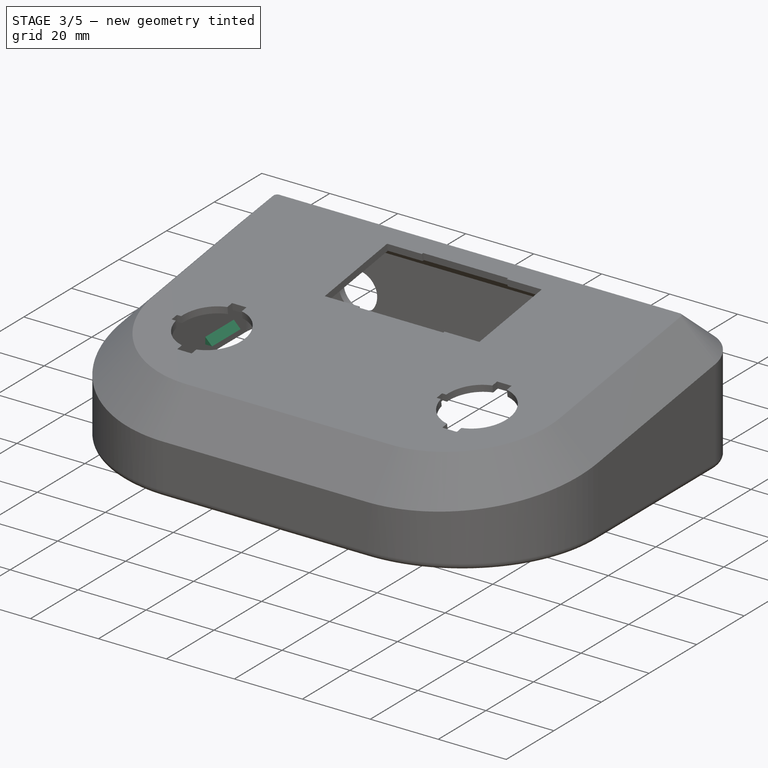
[diagram: stage 3 of 5 — iso view after this stage's code; geometry added in this stage tinted green]
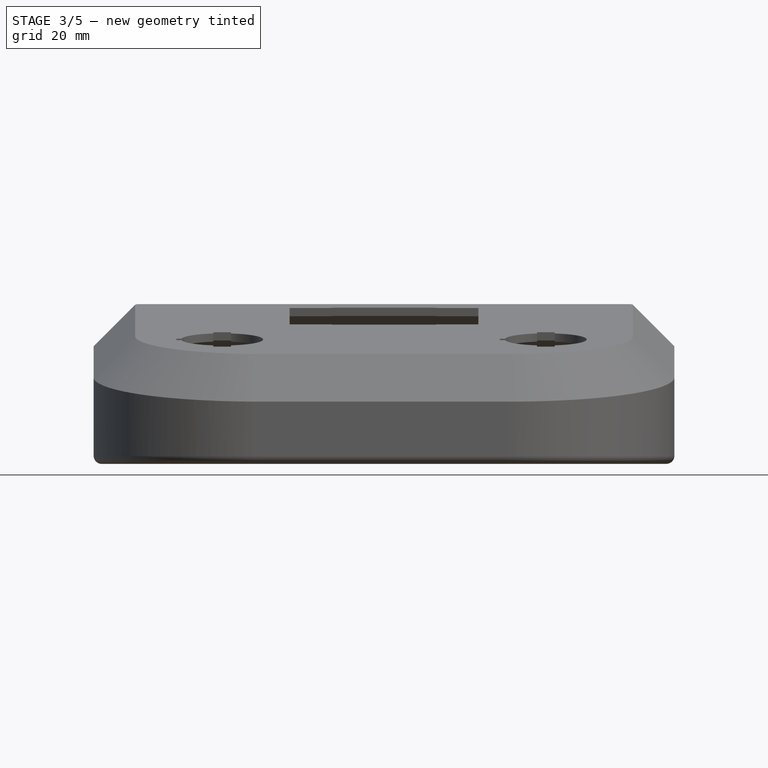
[diagram: stage 3 of 5 — front view after this stage's code; geometry added in this stage tinted green]
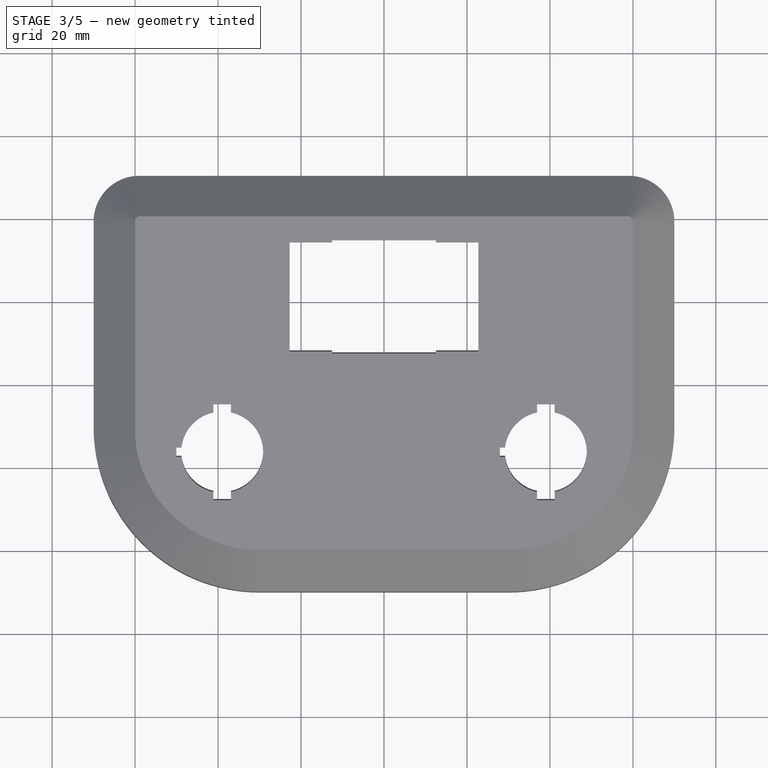
[diagram: stage 3 of 5 — top view after this stage's code; geometry added in this stage tinted green]
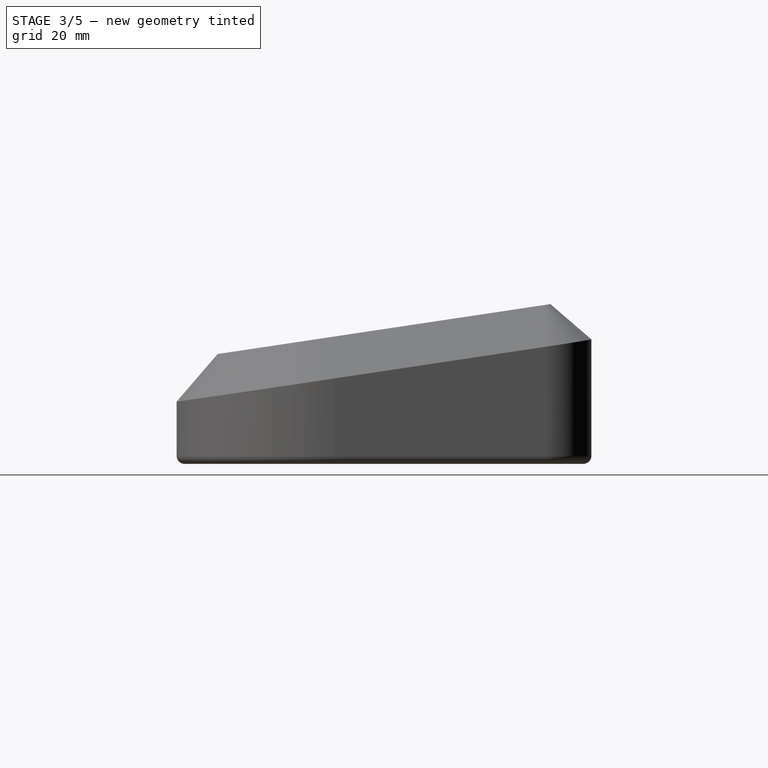
[diagram: stage 3 of 5 — right view after this stage's code; geometry added in this stage tinted green]
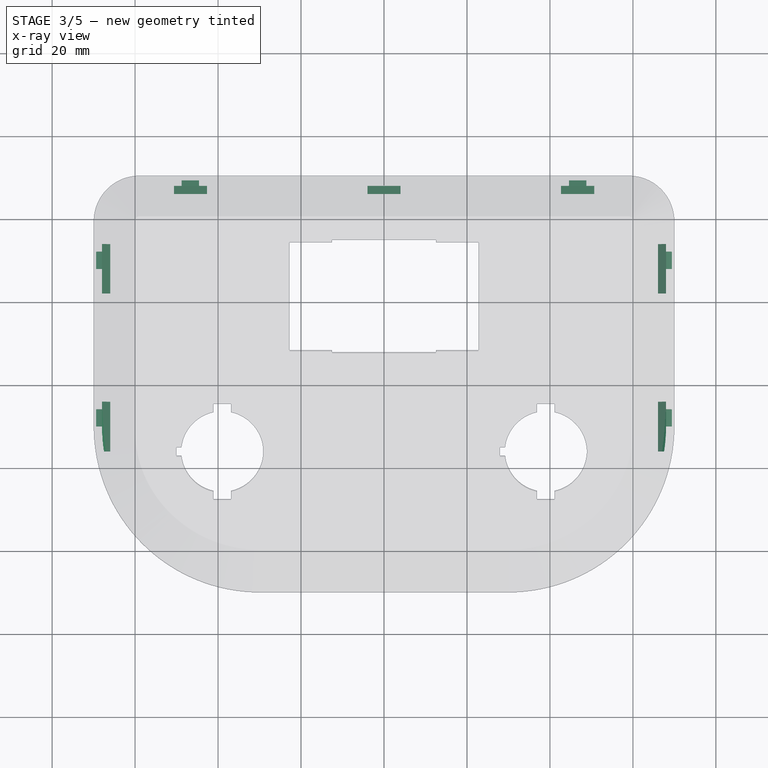
[diagram: stage 3 of 5 — x-ray composite at the top view; earlier geometry ghosted, this stage's added geometry solid]
FEATURE [PartDesign::MultiTransform] MultiTransform  label="Back Indent Transform"
  BaseFeature = -> Pocket007
  Originals = -> [Pocket007]
  Transformations = -> [LinearPattern001,LinearPattern002]
FEATURE [PartDesign::Pad] Pad002  label="Back Dedent Pad"
  BaseFeature = -> MultiTransform
  Direction = (1,1,1)
  Length = 8
  Length2 = 100
  Midplane = true
  Profile = -> Sketch014
  Type = 0
  expr: Length = <<args>>.latchWidth * 2
FEATURE [PartDesign::MultiTransform] MultiTransform001  label="Back Dedent Transform"
  BaseFeature = -> Pad002
  Originals = -> [Pad002]
  Transformations = -> [LinearPattern,LinearPattern003]
FEATURE [PartDesign::Pocket] Pocket008  label="Side Indent Pocket"
  BaseFeature = -> MultiTransform001
  Length = 4.2
  Length2 = 100
  Profile = -> Sketch016
  Type = 0
  expr: Length = <<args>>.latchWidth + <<args>>.tolerance
FEATURE [PartDesign::MultiTransform] MultiTransform003  label="Side Indent Transform"
  BaseFeature = -> Pocket008
  Originals = -> [Pocket008]
  Transformations = -> [LinearPattern006,Mirrored]
FEATURE [PartDesign::Pad] Pad005  label="Side Dedent Pad"
  BaseFeature = -> MultiTransform003
  Direction = (1,1,1)
  Length = 12
  Length2 = 100
  Midplane = true
  Profile = -> Sketch018
  Type = 0
  expr: Length = <<args>>.latchWidth * 3
FEATURE [PartDesign::MultiTransform] MultiTransform004  label="Side Dedent Transform"
  BaseFeature = -> Pad005
  Originals = -> [Pad005]
  Transformations = -> [LinearPattern008,Mirrored003]
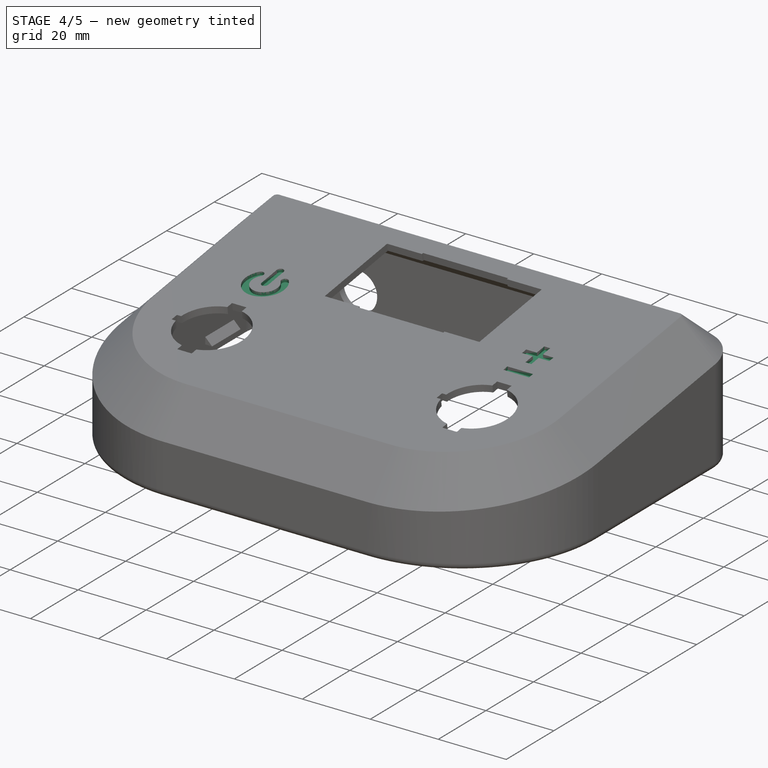
[diagram: stage 4 of 5 — iso view after this stage's code; geometry added in this stage tinted green]
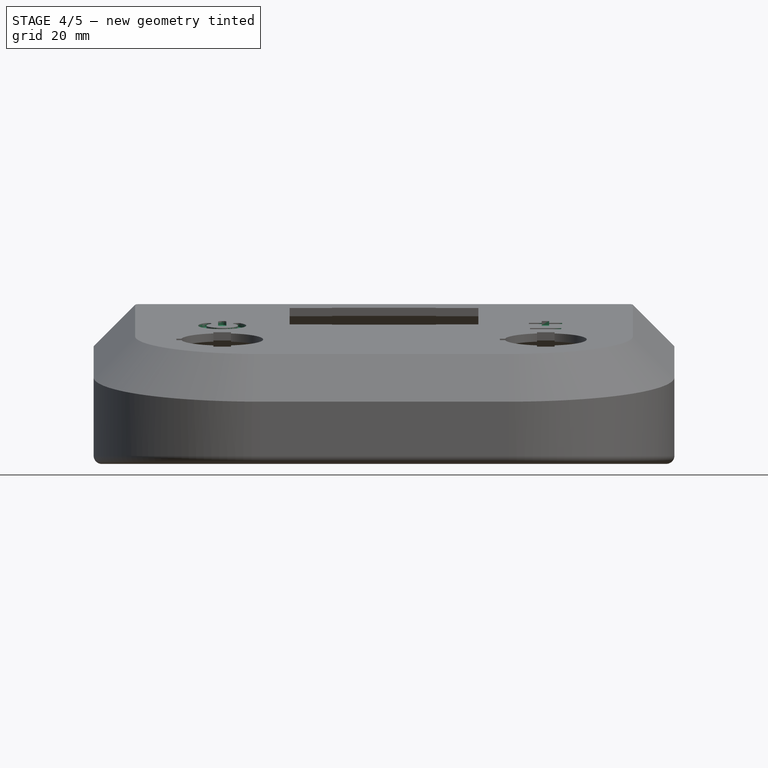
[diagram: stage 4 of 5 — front view after this stage's code; geometry added in this stage tinted green]
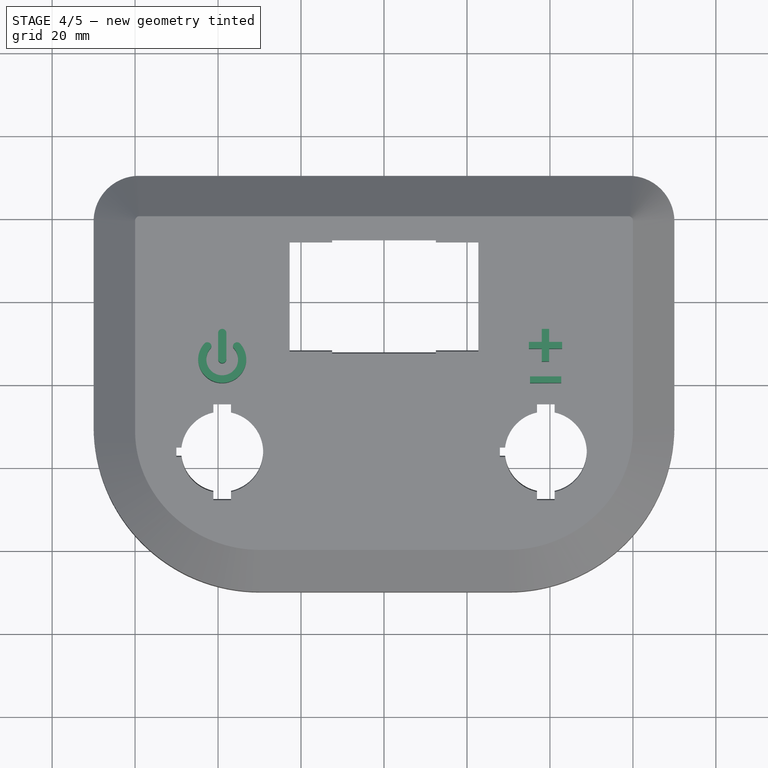
[diagram: stage 4 of 5 — top view after this stage's code; geometry added in this stage tinted green]
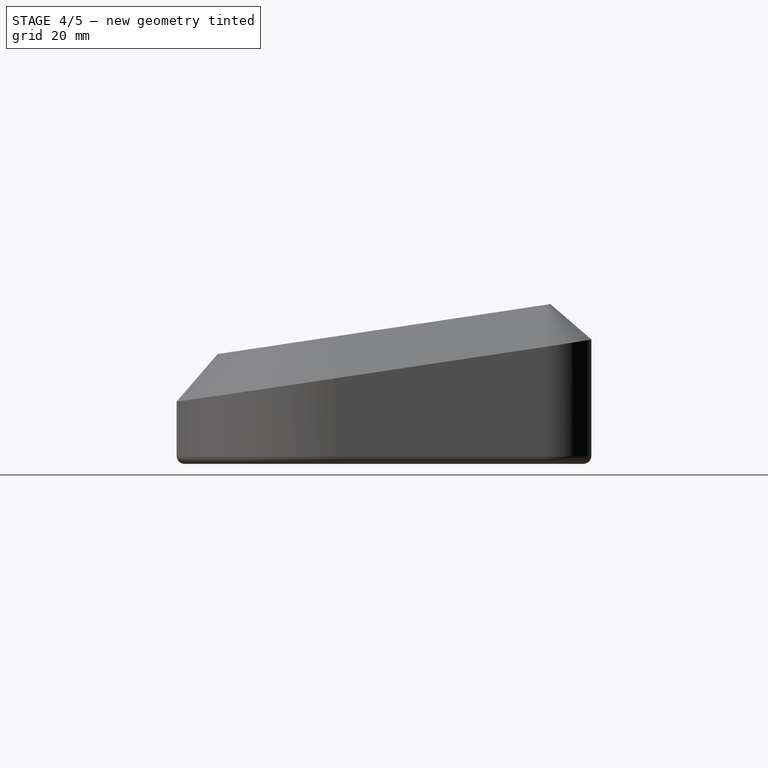
[diagram: stage 4 of 5 — right view after this stage's code; geometry added in this stage tinted green]
FEATURE [PartDesign::Pocket] Pocket009  label="Front Indent Pocket"
  BaseFeature = -> MultiTransform004
  Length = 4.2
  Length2 = 100
  Profile = -> Sketch019
  Type = 0
  expr: Length = <<args>>.latchWidth + <<args>>.tolerance
FEATURE [PartDesign::Pad] Pad004  label="Front Dedent Pad"
  BaseFeature = -> Pocket009
  Direction = (1,1,1)
  Length = 12
  Length2 = 100
  Midplane = true
  Profile = -> Sketch017
  Type = 0
  expr: Length = <<args>>.latchWidth * 3
FEATURE [PartDesign::LinearPattern] LinearPattern007  label="Front Dedent Transform"
  BaseFeature = -> Pad004
  Direction = -> Sketch017 [N_Axis]
  Length = 60
  Occurrences = 2
  Originals = -> [Pad004]
  expr: Length = <<args>>.width - Spreadsheet.radiusFront * 2
FEATURE [PartDesign::LinearPattern] LinearPattern009  label="Front Indent Transform"
  BaseFeature = -> LinearPattern007
  Direction = -> Sketch019 [N_Axis]
  Length = 55.8
  Occurrences = 2
  Originals = -> [Pocket009]
  Reversed = true
  expr: Length = <<args>>.width - Spreadsheet.radiusFront * 2 - <<args>>.latchWidth - <<args>>.tolerance
FEATURE [Sketcher::SketchObject] Sketch028  label="Standby Sketch 25%"
  AttachmentOffset = pos=(-44.8,18,0) rot=(0,0,1;0rad)
  FullyConstrained = false
  MapMode = 5
  Placement = pos=(-44.8,13.0335,34.4555) rot=(1,0,0;0.148877rad)
  Support = -> [LinearPattern009]
  sketch-geometry (19):
    g0: BSplineCurve PolesCount=3 KnotsCount=2 Degree=2 IsPeriodic=0
    g1: BSplineCurve PolesCount=4 KnotsCount=2 Degree=3 IsPeriodic=0
    g2: BSplineCurve PolesCount=4 KnotsCount=2 Degree=3 IsPeriodic=0
    g3: BSplineCurve PolesCount=4 KnotsCount=2 Degree=3 IsPeriodic=0
    g4: BSplineCurve PolesCount=4 KnotsCount=2 Degree=3 IsPeriodic=0
    g5: BSplineCurve PolesCount=3 KnotsCount=2 Degree=2 IsPeriodic=0
    g6: BSplineCurve PolesCount=3 KnotsCount=2 Degree=2 IsPeriodic=0
    g7: BSplineCurve PolesCount=4 KnotsCount=2 Degree=3 IsPeriodic=0
    g8: BSplineCurve PolesCount=4 KnotsCount=2 Degree=3 IsPeriodic=0
    g9: BSplineCurve PolesCount=4 KnotsCount=2 Degree=3 IsPeriodic=0
    g10: BSplineCurve PolesCount=4 KnotsCount=2 Degree=3 IsPeriodic=0
    g11: BSplineCurve PolesCount=3 KnotsCount=2 Degree=2 IsPeriodic=0
    g12: BSplineCurve PolesCount=3 KnotsCount=2 Degree=2 IsPeriodic=0
    g13: BSplineCurve PolesCount=3 KnotsCount=2 Degree=2 IsPeriodic=0
    g14: BSplineCurve PolesCount=2 KnotsCount=2 Degree=1 IsPeriodic=0
    g15: BSplineCurve PolesCount=3 KnotsCount=2 Degree=2 IsPeriodic=0
    g16: BSplineCurve PolesCount=3 KnotsCount=2 Degree=2 IsPeriodic=0
    g17: BSplineCurve PolesCount=2 KnotsCount=2 Degree=1 IsPeriodic=0
    g18: BSplineCurve PolesCount=3 KnotsCount=2 Degree=2 IsPeriodic=0
  constraints (19):
    c: Coincident(g0,g1)
    c: Coincident(g1,g2)
    c: Coincident(g2,g3)
    c: Coincident(g3,g4)
    c: Coincident(g4,g5)
    c: Coincident(g5,g6)
    c: Coincident(g6,g7)
    c: Coincident(g7,g8)
    c: Coincident(g8,g9)
    c: Coincident(g9,g10)
    c: Coincident(g10,g11)
    c: Coincident(g11,g12)
    c: Coincident(g12,g0)
    c: Coincident(g13,g14)
    c: Coincident(g14,g15)
    c: Coincident(g15,g16)
    c: Coincident(g16,g17)
    c: Coincident(g17,g18)
    c: Coincident(g18,g13)
FEATURE [PartDesign::Pocket] Pocket010  label="Standby Pocket 25%"
  BaseFeature = -> LinearPattern009
  Length = 1
  Length2 = 100
  Profile = -> Sketch028
  Type = 0
  expr: Length = <<args>>.textDepth
FEATURE [Sketcher::SketchObject] Sketch029  label="Plus Sketch 15mm"
  AttachmentOffset = pos=(34.2,8.3,0) rot=(0,0,1;0rad)
  FullyConstrained = false
  MapMode = 5
  Placement = pos=(34.2,3.44078,33.0168) rot=(1,0,0;0.148877rad)
  Support = -> [Pocket010]
  sketch-geometry (12):
    g0: LineSegment StartX=3.83471 StartY=4.77053 StartZ=0 EndX=0.709932 EndY=4.77053 EndZ=0
    g1: LineSegment StartX=3.83471 StartY=1.66726 StartZ=0 EndX=3.83471 EndY=4.77053 EndZ=0
    g2: LineSegment StartX=5.59878 StartY=1.66726 StartZ=0 EndX=3.83471 EndY=1.66726 EndZ=0
    g3: LineSegment StartX=5.59878 StartY=4.77053 StartZ=0 EndX=5.59878 EndY=1.66726 EndZ=0
    g4: LineSegment StartX=8.72356 StartY=4.77053 StartZ=0 EndX=5.59878 EndY=4.77053 EndZ=0
    g5: LineSegment StartX=8.72356 StartY=6.53998 StartZ=0 EndX=8.72356 EndY=4.77053 EndZ=0
    g6: LineSegment StartX=5.59878 StartY=6.53998 StartZ=0 EndX=8.72356 EndY=6.53998 EndZ=0
    g7: LineSegment StartX=5.59878 StartY=9.68627 StartZ=0 EndX=5.59878 EndY=6.53998 EndZ=0
    g8: LineSegment StartX=3.83471 StartY=9.68627 StartZ=0 EndX=5.59878 EndY=9.68627 EndZ=0
    g9: LineSegment StartX=3.83471 StartY=6.53998 StartZ=0 EndX=3.83471 EndY=9.68627 EndZ=0
    g10: LineSegment StartX=0.709932 StartY=6.53998 StartZ=0 EndX=3.83471 EndY=6.53998 EndZ=0
    g11: LineSegment StartX=0.709932 StartY=4.77053 StartZ=0 EndX=0.709932 EndY=6.53998 EndZ=0
  constraints (24):
    c: Horizontal(g0)
    c: Coincident(g0,g1)
    c: Vertical(g1)
    c: Coincident(g1,g2)
    c: Horizontal(g2)
    c: Coincident(g2,g3)
    c: Vertical(g3)
    c: Coincident(g3,g4)
    c: Horizontal(g4)
    c: Coincident(g4,g5)
    c: Vertical(g5)
    c: Coincident(g5,g6)
    c: Horizontal(g6)
    c: Coincident(g6,g7)
    c: Vertical(g7)
    c: Coincident(g7,g8)
    c: Horizontal(g8)
    c: Coincident(g8,g9)
    c: Vertical(g9)
    c: Coincident(g9,g10)
    c: Horizontal(g10)
    c: Coincident(g10,g11)
    c: Vertical(g11)
    c: Coincident(g11,g0)
FEATURE [Sketcher::SketchObject] Sketch031  label="Minus Sketch 15mm Scaled"
  AttachmentOffset = pos=(42.7,2.3,0) rot=(0,0,1;0rad)
  FullyConstrained = false
  MapMode = 5
  Placement = pos=(42.7,-2.49285,32.1268) rot=(1,0,0;0.148877rad)
  Support = -> [Pocket010]
  sketch-geometry (4):
    g0: BSplineCurve PolesCount=2 KnotsCount=2 Degree=1 IsPeriodic=0
    g1: BSplineCurve PolesCount=2 KnotsCount=2 Degree=1 IsPeriodic=0
    g2: BSplineCurve PolesCount=2 KnotsCount=2 Degree=1 IsPeriodic=0
    g3: BSplineCurve PolesCount=2 KnotsCount=2 Degree=1 IsPeriodic=0
  constraints (4):
    c: Coincident(g0,g1)
    c: Coincident(g1,g2)
    c: Coincident(g2,g3)
    c: Coincident(g3,g0)
FEATURE [PartDesign::Pocket] Pocket011  label="Plus Pocket 15mm"
  BaseFeature = -> Pocket010
  Length = 1
  Length2 = 100
  Profile = -> Sketch029
  Type = 0
  expr: Length = <<args>>.textDepth
FEATURE [PartDesign::Pocket] Pocket012  label="Minus Pocket 15mm Scaled"
  BaseFeature = -> Pocket011
  Length = 1
  Length2 = 100
  Profile = -> Sketch031
  Type = 0
  expr: Length = <<args>>.textDepth
FEATURE [PartDesign::Body] Body  label="top"
  Group = -> [Sketch,Pad,Draft,Fillet001,Fillet002,Thickness,Chamfer,Chamfer001,Fillet,Sketch002,Pocket,Sketch004,Pocket001,Sketch006,Sketch007,Pocket002,Sketch008,Sketch009,Sketch011,Pocket005,Sketch012,Pocket006,Sketch013,Pocket007,MultiTransform,Sketch014,Pad002,LinearPattern001,LinearPattern002,MultiTransform001,LinearPattern,LinearPattern003,Sketch016,Pocket008,MultiTransform003,LinearPattern006,Mirrored,+17 more]
  Origin = -> Origin
  Tip = -> Pocket012
note: 6 file-system paths scrubbed to <path> (originals preserved in the JSON sidecar)
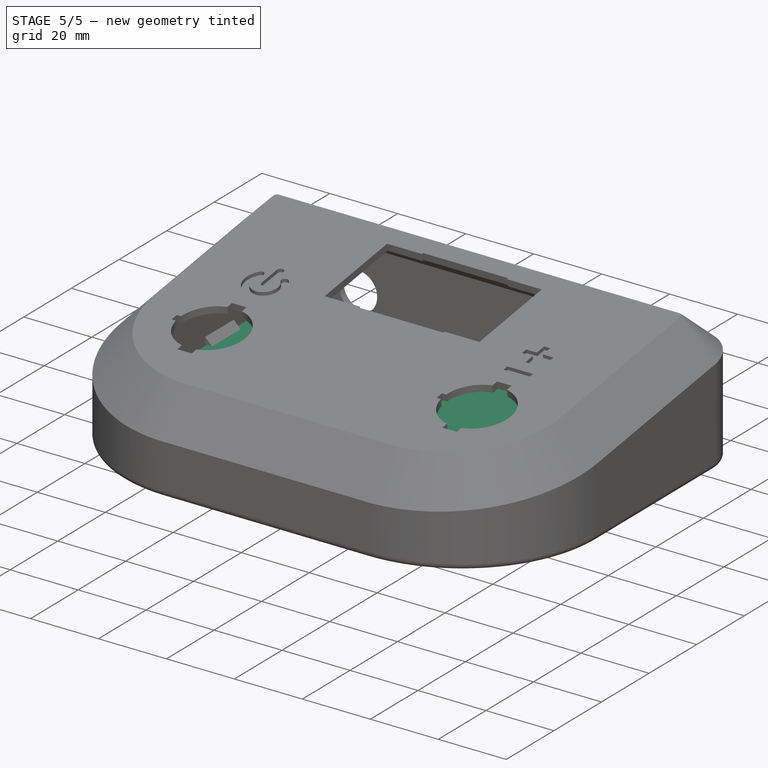
[diagram: stage 5 of 5 — iso view after this stage's code; geometry added in this stage tinted green]
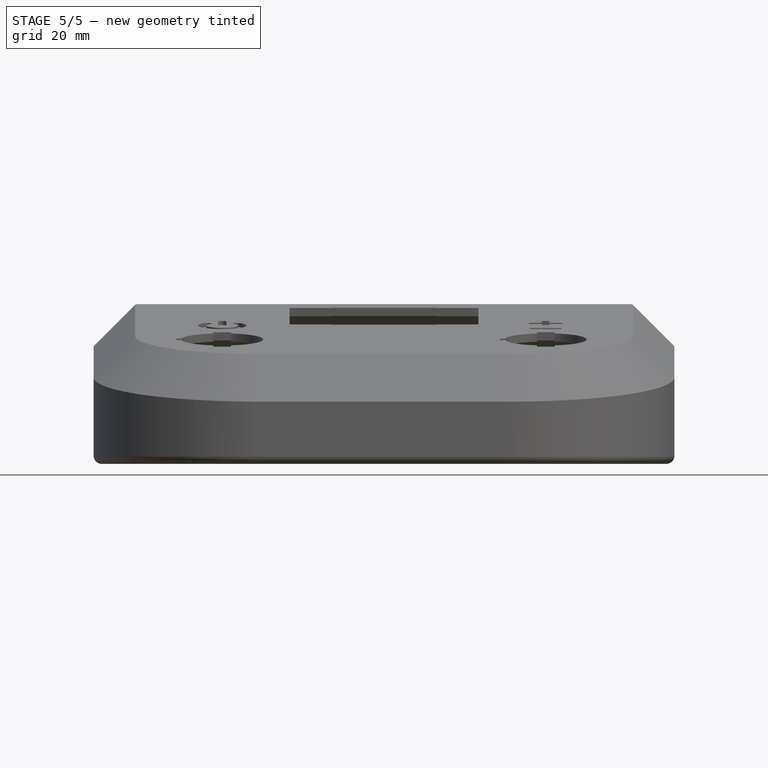
[diagram: stage 5 of 5 — front view after this stage's code; geometry added in this stage tinted green]
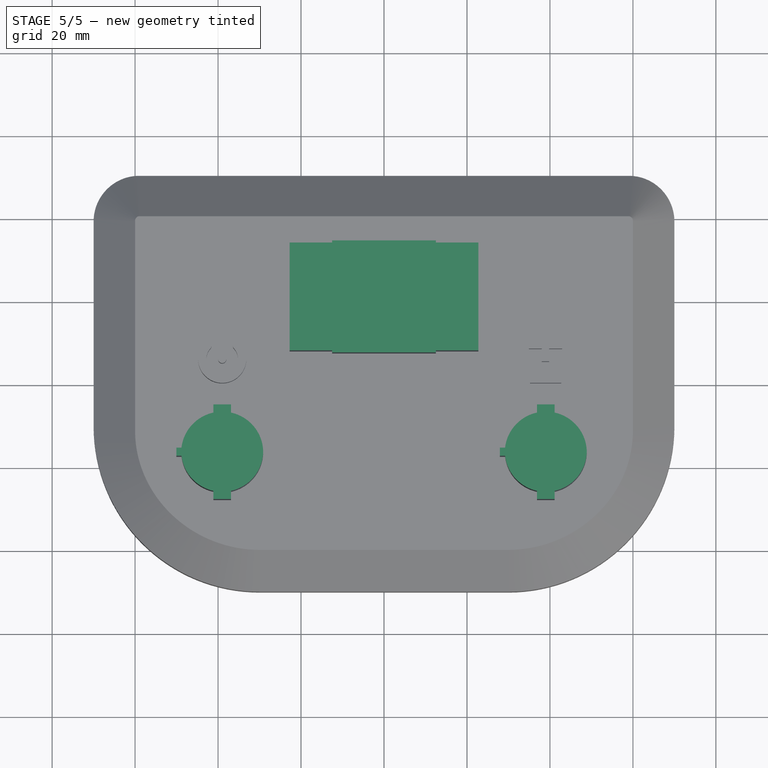
[diagram: stage 5 of 5 — top view after this stage's code; geometry added in this stage tinted green]
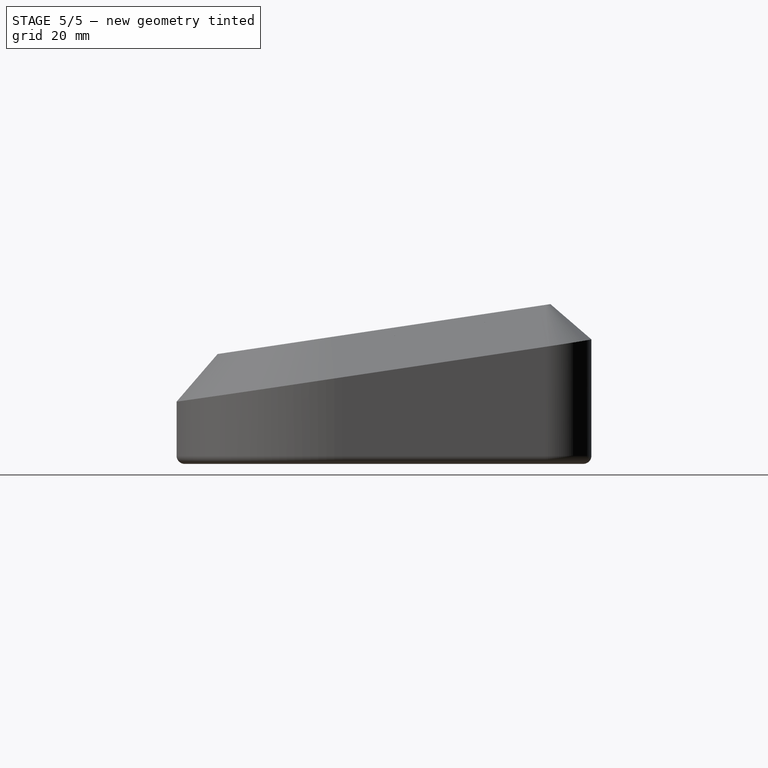
[diagram: stage 5 of 5 — right view after this stage's code; geometry added in this stage tinted green]
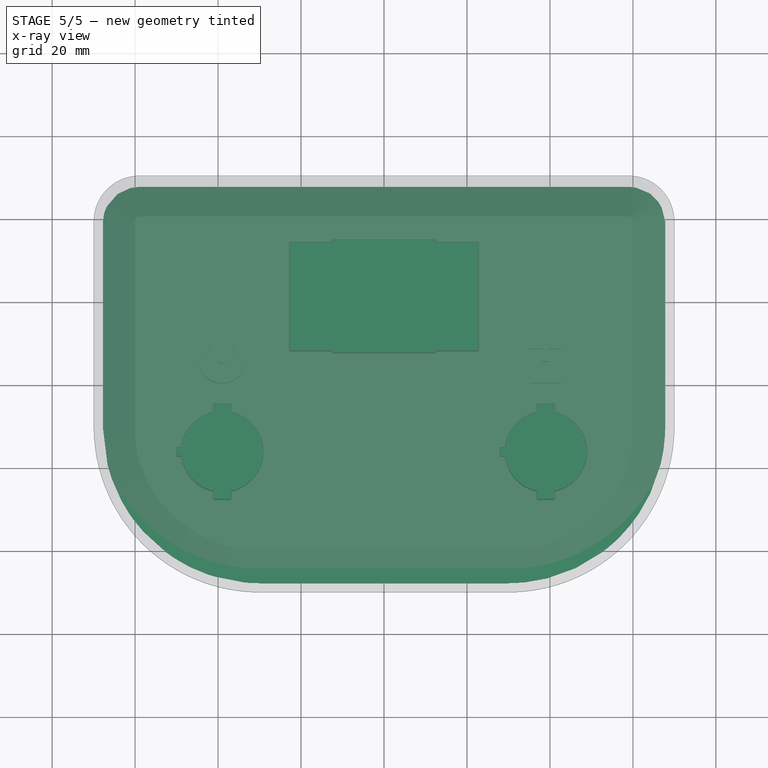
[diagram: stage 5 of 5 — x-ray composite at the top view; earlier geometry ghosted, this stage's added geometry solid]
FEATURE [Sketcher::SketchObject] Sketch003  label="Outline Sketch"
  FullyConstrained = true
  MapMode = 5
  Support = -> [XY_Plane001]
  expr: Constraints[26] = <<args>>.depth / 2 - <<args>>.wall - <<args>>.tolerance
  expr: Constraints[25] = <<args>>.width / 2 - <<args>>.wall - <<args>>.tolerance
  expr: .Constraints.radius = Spreadsheet.radiusFront - <<args>>.wall - <<args>>.tolerance
  expr: Constraints[24] = <<args>>.width - <<args>>.wall * 2 - <<args>>.tolerance * 2
  expr: .Constraints.fillet = Spreadsheet.radiusBack - <<args>>.wall - <<args>>.tolerance
  expr: Constraints[5] = <<args>>.depth - <<args>>.wall * 2 - <<args>>.tolerance * 2
  sketch-geometry (8):
    g0: LineSegment StartX=-67.8 StartY=-10 StartZ=0 EndX=-67.8 EndY=39 EndZ=0
    g1: LineSegment StartX=-59 StartY=47.8 StartZ=0 EndX=59 EndY=47.8 EndZ=0
    g2: LineSegment StartX=67.8 StartY=39 StartZ=0 EndX=67.8 EndY=-10 EndZ=0
    g3: LineSegment StartX=30 StartY=-47.8 StartZ=0 EndX=-30 EndY=-47.8 EndZ=0
    g4: ArcOfCircle CenterX=59 CenterY=39 CenterZ=0 NormalX=0 NormalY=0 NormalZ=1 AngleXU=0 Radius=8.8 StartAngle=4.65899e-06 EndAngle=1.57079
    g5: ArcOfCircle CenterX=30 CenterY=-10 CenterZ=0 NormalX=0 NormalY=0 NormalZ=1 AngleXU=0 Radius=37.8 StartAngle=4.71239 EndAngle=6.28319
    g6: ArcOfCircle CenterX=-30 CenterY=-10 CenterZ=0 NormalX=0 NormalY=0 NormalZ=1 AngleXU=0 Radius=37.8 StartAngle=3.14159 EndAngle=4.71239
    g7: ArcOfCircle CenterX=-59 CenterY=39 CenterZ=0 NormalX=0 NormalY=0 NormalZ=1 AngleXU=0 Radius=8.79996 StartAngle=1.5708 EndAngle=3.14159
  constraints (28):
    c: Vertical(g0)
    c: Vertical(g2)
    c: Horizontal(g1)
    c: Horizontal(g3)
    c: Equal(g2,g0)
    c: Distance(g3,g1) = 95.6
    c: Coincident(g4,g2)
    c: Coincident(g4,g1)
    c: Tangent(g2,g4)
    c: Tangent(g1,g4)
    c: Radius(g4) = 8.8  'fillet'
    c: Coincident(g5,g3)
    c: Coincident(g5,g2)
    c: Tangent(g2,g5)
    c: Tangent(g3,g5)
    c: Radius(g5) = 37.8  'radius'
    c: Coincident(g6,g3)
    c: Coincident(g6,g0)
    c: Equal(g5,g6)
    c: Tangent(g6,g0)
    c: Coincident(g7,g0)
    c: Coincident(g7,g1)
    c: Tangent(g0,g7)
    c: Tangent(g1,g7)
    c: DistanceX(g0,g2) = 135.6
    c: Distance(g2,g-2) = 67.8
    c: Distance(g3,g-1) = 47.8
    c: Tangent(g6,g3)
FEATURE [PartDesign::Pad] Pad001  label="Outline Pad"
  Direction = (1,1,1)
  Length = 3
  Length2 = 100
  Profile = -> Sketch003
  Type = 0
  expr: Length = <<args>>.floor
FEATURE [Sketcher::SketchObject] Sketch006  label="Logo"
  FullyConstrained = false
  sketch-geometry (179):
    g0: BSplineCurve PolesCount=4 KnotsCount=2 Degree=3 IsPeriodic=0
    g1: BSplineCurve PolesCount=4 KnotsCount=2 Degree=3 IsPeriodic=0
    g2: BSplineCurve PolesCount=4 KnotsCount=2 Degree=3 IsPeriodic=0
    g3: BSplineCurve PolesCount=4 KnotsCount=2 Degree=3 IsPeriodic=0
    g4: BSplineCurve PolesCount=4 KnotsCount=2 Degree=3 IsPeriodic=0
    g5: BSplineCurve PolesCount=4 KnotsCount=2 Degree=3 IsPeriodic=0
    g6: BSplineCurve PolesCount=4 KnotsCount=2 Degree=3 IsPeriodic=0
    g7: BSplineCurve PolesCount=4 KnotsCount=2 Degree=3 IsPeriodic=0
    g8: BSplineCurve PolesCount=4 KnotsCount=2 Degree=3 IsPeriodic=0
    g9: BSplineCurve PolesCount=4 KnotsCount=2 Degree=3 IsPeriodic=0
    g10: BSplineCurve PolesCount=4 KnotsCount=2 Degree=3 IsPeriodic=0
    g11: BSplineCurve PolesCount=4 KnotsCount=2 Degree=3 IsPeriodic=0
    g12: BSplineCurve PolesCount=4 KnotsCount=2 Degree=3 IsPeriodic=0
    g13: BSplineCurve PolesCount=4 KnotsCount=2 Degree=3 IsPeriodic=0
    g14: BSplineCurve PolesCount=4 KnotsCount=2 Degree=3 IsPeriodic=0
    g15: BSplineCurve PolesCount=4 KnotsCount=2 Degree=3 IsPeriodic=0
    g16: BSplineCurve PolesCount=4 KnotsCount=2 Degree=3 IsPeriodic=0
    g17: BSplineCurve PolesCount=4 KnotsCount=2 Degree=3 IsPeriodic=0
    g18: BSplineCurve PolesCount=4 KnotsCount=2 Degree=3 IsPeriodic=0
    g19: BSplineCurve PolesCount=4 KnotsCount=2 Degree=3 IsPeriodic=0
    g20: BSplineCurve PolesCount=7 KnotsCount=4 Degree=2 IsPeriodic=0
    g21: BSplineCurve PolesCount=4 KnotsCount=2 Degree=3 IsPeriodic=0
    g22: BSplineCurve PolesCount=4 KnotsCount=2 Degree=3 IsPeriodic=0
    g23: BSplineCurve PolesCount=4 KnotsCount=2 Degree=3 IsPeriodic=0
    g24: BSplineCurve PolesCount=4 KnotsCount=2 Degree=3 IsPeriodic=0
    g25: BSplineCurve PolesCount=4 KnotsCount=2 Degree=3 IsPeriodic=0
    g26: BSplineCurve PolesCount=4 KnotsCount=2 Degree=3 IsPeriodic=0
    g27: BSplineCurve PolesCount=4 KnotsCount=2 Degree=3 IsPeriodic=0
    g28: BSplineCurve PolesCount=4 KnotsCount=2 Degree=3 IsPeriodic=0
    g29: BSplineCurve PolesCount=4 KnotsCount=2 Degree=3 IsPeriodic=0
    g30: BSplineCurve PolesCount=4 KnotsCount=2 Degree=3 IsPeriodic=0
    g31: BSplineCurve PolesCount=4 KnotsCount=2 Degree=3 IsPeriodic=0
    g32: BSplineCurve PolesCount=4 KnotsCount=2 Degree=3 IsPeriodic=0
    g33: BSplineCurve PolesCount=4 KnotsCount=2 Degree=3 IsPeriodic=0
    g34: BSplineCurve PolesCount=4 KnotsCount=2 Degree=3 IsPeriodic=0
    g35: BSplineCurve PolesCount=4 KnotsCount=2 Degree=3 IsPeriodic=0
    g36: BSplineCurve PolesCount=4 KnotsCount=2 Degree=3 IsPeriodic=0
    g37: BSplineCurve PolesCount=4 KnotsCount=2 Degree=3 IsPeriodic=0
    g38: BSplineCurve PolesCount=4 KnotsCount=2 Degree=3 IsPeriodic=0
    g39: BSplineCurve PolesCount=4 KnotsCount=2 Degree=3 IsPeriodic=0
    g40: BSplineCurve PolesCount=4 KnotsCount=2 Degree=3 IsPeriodic=0
    g41: BSplineCurve PolesCount=4 KnotsCount=2 Degree=3 IsPeriodic=0
    g42: BSplineCurve PolesCount=4 KnotsCount=2 Degree=3 IsPeriodic=0
    g43: BSplineCurve PolesCount=4 KnotsCount=2 Degree=3 IsPeriodic=0
    g44: BSplineCurve PolesCount=4 KnotsCount=2 Degree=3 IsPeriodic=0
    g45: BSplineCurve PolesCount=4 KnotsCount=2 Degree=3 IsPeriodic=0
    g46: BSplineCurve PolesCount=4 KnotsCount=2 Degree=3 IsPeriodic=0
    g47: BSplineCurve PolesCount=4 KnotsCount=2 Degree=3 IsPeriodic=0
    g48: BSplineCurve PolesCount=4 KnotsCount=2 Degree=3 IsPeriodic=0
    g49: BSplineCurve PolesCount=4 KnotsCount=2 Degree=3 IsPeriodic=0
    g50: BSplineCurve PolesCount=4 KnotsCount=2 Degree=3 IsPeriodic=0
    g51: BSplineCurve PolesCount=4 KnotsCount=2 Degree=3 IsPeriodic=0
    g52: BSplineCurve PolesCount=4 KnotsCount=2 Degree=3 IsPeriodic=0
    g53: BSplineCurve PolesCount=3 KnotsCount=2 Degree=2 IsPeriodic=0
    g54: BSplineCurve PolesCount=3 KnotsCount=2 Degree=2 IsPeriodic=0
    g55: BSplineCurve PolesCount=3 KnotsCount=2 Degree=2 IsPeriodic=0
    g56: BSplineCurve PolesCount=3 KnotsCount=2 Degree=2 IsPeriodic=0
    g57: BSplineCurve PolesCount=4 KnotsCount=2 Degree=3 IsPeriodic=0
    g58: BSplineCurve PolesCount=4 KnotsCount=2 Degree=3 IsPeriodic=0
    g59: BSplineCurve PolesCount=4 KnotsCount=2 Degree=3 IsPeriodic=0
    g60: BSplineCurve PolesCount=4 KnotsCount=2 Degree=3 IsPeriodic=0
    g61: BSplineCurve PolesCount=4 KnotsCount=2 Degree=3 IsPeriodic=0
    g62: BSplineCurve PolesCount=4 KnotsCount=2 Degree=3 IsPeriodic=0
    g63: BSplineCurve PolesCount=4 KnotsCount=2 Degree=3 IsPeriodic=0
    g64: BSplineCurve PolesCount=4 KnotsCount=2 Degree=3 IsPeriodic=0
    g65: BSplineCurve PolesCount=4 KnotsCount=2 Degree=3 IsPeriodic=0
    g66: BSplineCurve PolesCount=4 KnotsCount=2 Degree=3 IsPeriodic=0
    g67: BSplineCurve PolesCount=4 KnotsCount=2 Degree=3 IsPeriodic=0
    g68: BSplineCurve PolesCount=4 KnotsCount=2 Degree=3 IsPeriodic=0
    g69: BSplineCurve PolesCount=4 KnotsCount=2 Degree=3 IsPeriodic=0
    g70: BSplineCurve PolesCount=4 KnotsCount=2 Degree=3 IsPeriodic=0
    g71: BSplineCurve PolesCount=4 KnotsCount=2 Degree=3 IsPeriodic=0
    g72: BSplineCurve PolesCount=4 KnotsCount=2 Degree=3 IsPeriodic=0
    g73: BSplineCurve PolesCount=4 KnotsCount=2 Degree=3 IsPeriodic=0
    g74: BSplineCurve PolesCount=4 KnotsCount=2 Degree=3 IsPeriodic=0
    g75: BSplineCurve PolesCount=4 KnotsCount=2 Degree=3 IsPeriodic=0
    g76: BSplineCurve PolesCount=4 KnotsCount=2 Degree=3 IsPeriodic=0
    g77: BSplineCurve PolesCount=7 KnotsCount=4 Degree=2 IsPeriodic=0
    g78: BSplineCurve PolesCount=4 KnotsCount=2 Degree=3 IsPeriodic=0
    g79: BSplineCurve PolesCount=4 KnotsCount=2 Degree=3 IsPeriodic=0
    g80: BSplineCurve PolesCount=4 KnotsCount=2 Degree=3 IsPeriodic=0
    g81: BSplineCurve PolesCount=4 KnotsCount=2 Degree=3 IsPeriodic=0
    g82: BSplineCurve PolesCount=4 KnotsCount=2 Degree=3 IsPeriodic=0
    g83: BSplineCurve PolesCount=4 KnotsCount=2 Degree=3 IsPeriodic=0
    g84: BSplineCurve PolesCount=4 KnotsCount=2 Degree=3 IsPeriodic=0
    g85: BSplineCurve PolesCount=4 KnotsCount=2 Degree=3 IsPeriodic=0
    g86: BSplineCurve PolesCount=4 KnotsCount=2 Degree=3 IsPeriodic=0
    g87: BSplineCurve PolesCount=4 KnotsCount=2 Degree=3 IsPeriodic=0
    g88: BSplineCurve PolesCount=4 KnotsCount=2 Degree=3 IsPeriodic=0
    g89: BSplineCurve PolesCount=4 KnotsCount=2 Degree=3 IsPeriodic=0
    g90: BSplineCurve PolesCount=4 KnotsCount=2 Degree=3 IsPeriodic=0
    g91: BSplineCurve PolesCount=4 KnotsCount=2 Degree=3 IsPeriodic=0
    g92: BSplineCurve PolesCount=4 KnotsCount=2 Degree=3 IsPeriodic=0
    g93: BSplineCurve PolesCount=4 KnotsCount=2 Degree=3 IsPeriodic=0
    g94: BSplineCurve PolesCount=4 KnotsCount=2 Degree=3 IsPeriodic=0
    g95: BSplineCurve PolesCount=4 KnotsCount=2 Degree=3 IsPeriodic=0
    g96: BSplineCurve PolesCount=4 KnotsCount=2 Degree=3 IsPeriodic=0
    g97: BSplineCurve PolesCount=4 KnotsCount=2 Degree=3 IsPeriodic=0
    g98: BSplineCurve PolesCount=4 KnotsCount=2 Degree=3 IsPeriodic=0
    g99: BSplineCurve PolesCount=4 KnotsCount=2 Degree=3 IsPeriodic=0
    g100: BSplineCurve PolesCount=4 KnotsCount=2 Degree=3 IsPeriodic=0
    g101: BSplineCurve PolesCount=4 KnotsCount=2 Degree=3 IsPeriodic=0
    g102: BSplineCurve PolesCount=4 KnotsCount=2 Degree=3 IsPeriodic=0
    g103: BSplineCurve PolesCount=4 KnotsCount=2 Degree=3 IsPeriodic=0
    g104: BSplineCurve PolesCount=4 KnotsCount=2 Degree=3 IsPeriodic=0
    g105: BSplineCurve PolesCount=4 KnotsCount=2 Degree=3 IsPeriodic=0
    g106: BSplineCurve PolesCount=4 KnotsCount=2 Degree=3 IsPeriodic=0
    g107: BSplineCurve PolesCount=4 KnotsCount=2 Degree=3 IsPeriodic=0
    g108: BSplineCurve PolesCount=4 KnotsCount=2 Degree=3 IsPeriodic=0
    g109: BSplineCurve PolesCount=4 KnotsCount=2 Degree=3 IsPeriodic=0
    g110: BSplineCurve PolesCount=3 KnotsCount=2 Degree=2 IsPeriodic=0
    g111: BSplineCurve PolesCount=3 KnotsCount=2 Degree=2 IsPeriodic=0
    g112: BSplineCurve PolesCount=3 KnotsCount=2 Degree=2 IsPeriodic=0
    g113: BSplineCurve PolesCount=3 KnotsCount=2 Degree=2 IsPeriodic=0
    g114: BSplineCurve PolesCount=4 KnotsCount=2 Degree=3 IsPeriodic=0
    g115: BSplineCurve PolesCount=4 KnotsCount=2 Degree=3 IsPeriodic=0
    g116: BSplineCurve PolesCount=4 KnotsCount=2 Degree=3 IsPeriodic=0
    g117: BSplineCurve PolesCount=4 KnotsCount=2 Degree=3 IsPeriodic=0
    g118: BSplineCurve PolesCount=2 KnotsCount=2 Degree=1 IsPeriodic=0
    g119: BSplineCurve PolesCount=2 KnotsCount=2 Degree=1 IsPeriodic=0
    g120: BSplineCurve PolesCount=2 KnotsCount=2 Degree=1 IsPeriodic=0
    g121: BSplineCurve PolesCount=2 KnotsCount=2 Degree=1 IsPeriodic=0
    g122: BSplineCurve PolesCount=2 KnotsCount=2 Degree=1 IsPeriodic=0
    g123: BSplineCurve PolesCount=2 KnotsCount=2 Degree=1 IsPeriodic=0
    g124: BSplineCurve PolesCount=2 KnotsCount=2 Degree=1 IsPeriodic=0
    g125: BSplineCurve PolesCount=2 KnotsCount=2 Degree=1 IsPeriodic=0
    g126: BSplineCurve PolesCount=2 KnotsCount=2 Degree=1 IsPeriodic=0
    g127: BSplineCurve PolesCount=2 KnotsCount=2 Degree=1 IsPeriodic=0
    g128: BSplineCurve PolesCount=2 KnotsCount=2 Degree=1 IsPeriodic=0
    g129: BSplineCurve PolesCount=2 KnotsCount=2 Degree=1 IsPeriodic=0
    g130: BSplineCurve PolesCount=2 KnotsCount=2 Degree=1 IsPeriodic=0
    g131: BSplineCurve PolesCount=2 KnotsCount=2 Degree=1 IsPeriodic=0
    g132: BSplineCurve PolesCount=2 KnotsCount=2 Degree=1 IsPeriodic=0
    g133: BSplineCurve PolesCount=2 KnotsCount=2 Degree=1 IsPeriodic=0
    g134: BSplineCurve PolesCount=2 KnotsCount=2 Degree=1 IsPeriodic=0
    g135: BSplineCurve PolesCount=2 KnotsCount=2 Degree=1 IsPeriodic=0
    g136: BSplineCurve PolesCount=2 KnotsCount=2 Degree=1 IsPeriodic=0
    g137: BSplineCurve PolesCount=2 KnotsCount=2 Degree=1 IsPeriodic=0
    g138: BSplineCurve PolesCount=2 KnotsCount=2 Degree=1 IsPeriodic=0
    g139: BSplineCurve PolesCount=2 KnotsCount=2 Degree=1 IsPeriodic=0
    g140: BSplineCurve PolesCount=2 KnotsCount=2 Degree=1 IsPeriodic=0
    g141: BSplineCurve PolesCount=2 KnotsCount=2 Degree=1 IsPeriodic=0
    g142: BSplineCurve PolesCount=2 KnotsCount=2 Degree=1 IsPeriodic=0
    g143: BSplineCurve PolesCount=2 KnotsCount=2 Degree=1 IsPeriodic=0
    g144: BSplineCurve PolesCount=2 KnotsCount=2 Degree=1 IsPeriodic=0
    g145: BSplineCurve PolesCount=2 KnotsCount=2 Degree=1 IsPeriodic=0
    g146: BSplineCurve PolesCount=2 KnotsCount=2 Degree=1 IsPeriodic=0
    g147: BSplineCurve PolesCount=2 KnotsCount=2 Degree=1 IsPeriodic=0
    g148: BSplineCurve PolesCount=2 KnotsCount=2 Degree=1 IsPeriodic=0
    g149: BSplineCurve PolesCount=2 KnotsCount=2 Degree=1 IsPeriodic=0
    g150: BSplineCurve PolesCount=2 KnotsCount=2 Degree=1 IsPeriodic=0
    g151: BSplineCurve PolesCount=2 KnotsCount=2 Degree=1 IsPeriodic=0
    g152: BSplineCurve PolesCount=2 KnotsCount=2 Degree=1 IsPeriodic=0
    g153: BSplineCurve PolesCount=2 KnotsCount=2 Degree=1 IsPeriodic=0
    g154: BSplineCurve PolesCount=2 KnotsCount=2 Degree=1 IsPeriodic=0
    g155: BSplineCurve PolesCount=2 KnotsCount=2 Degree=1 IsPeriodic=0
    g156: BSplineCurve PolesCount=2 KnotsCount=2 Degree=1 IsPeriodic=0
    g157: BSplineCurve PolesCount=2 KnotsCount=2 Degree=1 IsPeriodic=0
    g158: BSplineCurve PolesCount=2 KnotsCount=2 Degree=1 IsPeriodic=0
    g159: BSplineCurve PolesCount=2 KnotsCount=2 Degree=1 IsPeriodic=0
    g160: BSplineCurve PolesCount=2 KnotsCount=2 Degree=1 IsPeriodic=0
    g161: BSplineCurve PolesCount=2 KnotsCount=2 Degree=1 IsPeriodic=0
    g162: BSplineCurve PolesCount=2 KnotsCount=2 Degree=1 IsPeriodic=0
    g163: BSplineCurve PolesCount=2 KnotsCount=2 Degree=1 IsPeriodic=0
    g164: BSplineCurve PolesCount=2 KnotsCount=2 Degree=1 IsPeriodic=0
    g165: BSplineCurve PolesCount=2 KnotsCount=2 Degree=1 IsPeriodic=0
    g166: BSplineCurve PolesCount=2 KnotsCount=2 Degree=1 IsPeriodic=0
    g167: BSplineCurve PolesCount=2 KnotsCount=2 Degree=1 IsPeriodic=0
    g168: BSplineCurve PolesCount=2 KnotsCount=2 Degree=1 IsPeriodic=0
    g169: BSplineCurve PolesCount=2 KnotsCount=2 Degree=1 IsPeriodic=0
    g170: BSplineCurve PolesCount=2 KnotsCount=2 Degree=1 IsPeriodic=0
    g171: BSplineCurve PolesCount=2 KnotsCount=2 Degree=1 IsPeriodic=0
    g172: BSplineCurve PolesCount=2 KnotsCount=2 Degree=1 IsPeriodic=0
    g173: BSplineCurve PolesCount=2 KnotsCount=2 Degree=1 IsPeriodic=0
    g174: BSplineCurve PolesCount=2 KnotsCount=2 Degree=1 IsPeriodic=0
    g175: BSplineCurve PolesCount=2 KnotsCount=2 Degree=1 IsPeriodic=0
    g176: BSplineCurve PolesCount=2 KnotsCount=2 Degree=1 IsPeriodic=0
    g177: BSplineCurve PolesCount=2 KnotsCount=2 Degree=1 IsPeriodic=0
    g178: BSplineCurve PolesCount=2 KnotsCount=2 Degree=1 IsPeriodic=0
  constraints (137):
    c: Coincident(g0,g1)
    c: Coincident(g3,g4)
    c: Coincident(g4,g5)
    c: Coincident(g5,g6)
    c: Coincident(g6,g7)
    c: Coincident(g7,g8)
    c: Coincident(g8,g9)
    c: Coincident(g9,g10)
    c: Coincident(g10,g11)
    c: Coincident(g11,g12)
    c: Coincident(g12,g13)
    c: Coincident(g16,g17)
    c: Coincident(g21,g22)
    c: Coincident(g22,g23)
    c: Coincident(g23,g24)
    c: Coincident(g24,g25)
    c: Coincident(g26,g27)
    c: Coincident(g27,g28)
    c: Coincident(g29,g30)
    c: Coincident(g30,g31)
    c: Coincident(g32,g33)
    c: Coincident(g33,g34)
    c: Coincident(g35,g36)
    c: Coincident(g36,g37)
    c: Coincident(g38,g39)
    c: Coincident(g39,g40)
    c: Coincident(g41,g42)
    c: Coincident(g42,g43)
    c: Coincident(g44,g45)
    c: Coincident(g45,g46)
    c: Coincident(g46,g47)
    c: Coincident(g48,g49)
    c: Coincident(g50,g51)
    c: Coincident(g51,g52)
    c: Coincident(g53,g54)
    c: Coincident(g54,g55)
    c: Coincident(g55,g56)
    c: Coincident(g57,g58)
    c: Coincident(g60,g61)
    c: Coincident(g61,g62)
    c: Coincident(g62,g63)
    c: Coincident(g63,g64)
    c: Coincident(g64,g65)
    c: Coincident(g65,g66)
    c: Coincident(g66,g67)
    c: Coincident(g67,g68)
    c: Coincident(g68,g69)
    c: Coincident(g69,g70)
    c: Coincident(g73,g74)
    c: Coincident(g78,g79)
    c: Coincident(g79,g80)
    c: Coincident(g80,g81)
    c: Coincident(g81,g82)
    c: Coincident(g83,g84)
    c: Coincident(g84,g85)
    c: Coincident(g86,g87)
    c: Coincident(g87,g88)
    c: Coincident(g89,g90)
    c: Coincident(g90,g91)
    c: Coincident(g92,g93)
    c: Coincident(g93,g94)
    c: Coincident(g95,g96)
    c: Coincident(g96,g97)
    c: Coincident(g98,g99)
    c: Coincident(g99,g100)
    c: Coincident(g101,g102)
    c: Coincident(g102,g103)
    c: Coincident(g103,g104)
    c: Coincident(g105,g106)
    c: Coincident(g107,g108)
    c: Coincident(g108,g109)
    c: Coincident(g110,g111)
    c: Coincident(g111,g112)
    c: Coincident(g112,g113)
    c: Coincident(g114,g115)
    c: Coincident(g116,g117)
    c: Coincident(g118,g119)
    c: Coincident(g119,g120)
    c: Coincident(g120,g121)
    c: Coincident(g121,g122)
    c: Coincident(g122,g123)
    c: Coincident(g123,g124)
    c: Coincident(g124,g125)
    c: Coincident(g125,g126)
    c: Coincident(g126,g127)
    c: Coincident(g127,g128)
    c: Coincident(g128,g129)
    c: Coincident(g129,g118)
    c: Coincident(g130,g131)
    c: Coincident(g131,g132)
    c: Coincident(g132,g133)
    c: Coincident(g133,g134)
    c: Coincident(g134,g135)
    c: Coincident(g135,g136)
    c: Coincident(g136,g137)
    c: Coincident(g137,g138)
    c: Coincident(g138,g139)
    c: Coincident(g139,g140)
    c: Coincident(g140,g141)
    c: Coincident(g141,g130)
    c: Coincident(g142,g143)
    c: Coincident(g143,g144)
    c: Coincident(g144,g145)
    c: Coincident(g145,g146)
    c: Coincident(g146,g147)
    c: Coincident(g147,g148)
    c: Coincident(g148,g149)
    c: Coincident(g149,g142)
    c: Coincident(g150,g151)
    c: Coincident(g151,g152)
    c: Coincident(g152,g150)
    c: Coincident(g153,g154)
    c: Coincident(g154,g155)
    c: Coincident(g155,g156)
    c: Coincident(g156,g157)
    c: Coincident(g157,g158)
    c: Coincident(g158,g153)
    c: Coincident(g159,g160)
    c: Coincident(g160,g161)
    c: Coincident(g161,g162)
    c: Coincident(g162,g163)
    c: Coincident(g163,g164)
    c: Coincident(g164,g165)
    c: Coincident(g165,g166)
    c: Coincident(g166,g159)
    c: Coincident(g167,g168)
    c: Coincident(g168,g169)
    c: Coincident(g169,g170)
    c: Coincident(g170,g171)
    c: Coincident(g171,g172)
    c: Coincident(g172,g173)
    c: Coincident(g173,g174)
    c: Coincident(g174,g175)
    c: Coincident(g175,g176)
    c: Coincident(g176,g177)
    c: Coincident(g177,g178)
    c: Coincident(g178,g167)
FEATURE [Sketcher::SketchObject] Sketch009  label="Power Sketch"
  FullyConstrained = false
  MapMode = 5
  Placement = pos=(0,-4.76741,31.7856) rot=(1,0,0;0.148877rad)
  sketch-geometry (81):
    g0: BSplineCurve PolesCount=3 KnotsCount=2 Degree=2 IsPeriodic=0
    g1: BSplineCurve PolesCount=3 KnotsCount=2 Degree=2 IsPeriodic=0
    g2: LineSegment StartX=-48.3503 StartY=7.68125 StartZ=0 EndX=-47.1284 EndY=7.68125 EndZ=0
    g3: LineSegment StartX=-48.3503 StartY=3 StartZ=0 EndX=-48.3503 EndY=7.68125 EndZ=0
    g4: LineSegment StartX=-47.8017 StartY=3 StartZ=0 EndX=-48.3503 EndY=3 EndZ=0
    g5: LineSegment StartX=-47.8017 StartY=4.86949 StartZ=0 EndX=-47.8017 EndY=3 EndZ=0
    g6: LineSegment StartX=-47.2467 StartY=4.86949 StartZ=0 EndX=-47.8017 EndY=4.86949 EndZ=0
    g7: BSplineCurve PolesCount=3 KnotsCount=2 Degree=2 IsPeriodic=0
    g8: LineSegment StartX=-47.8017 StartY=5.34062 StartZ=0 EndX=-47.3091 EndY=5.34062 EndZ=0
    g9: LineSegment StartX=-47.8017 StartY=7.20581 StartZ=0 EndX=-47.8017 EndY=5.34062 EndZ=0
    g10: LineSegment StartX=-47.1886 StartY=7.20581 StartZ=0 EndX=-47.8017 EndY=7.20581 EndZ=0
    g11: BSplineCurve PolesCount=3 KnotsCount=2 Degree=2 IsPeriodic=0
    g12: BSplineCurve PolesCount=3 KnotsCount=2 Degree=2 IsPeriodic=0
    g13: BSplineCurve PolesCount=3 KnotsCount=2 Degree=2 IsPeriodic=0
    g14: BSplineCurve PolesCount=3 KnotsCount=2 Degree=2 IsPeriodic=0
    g15: BSplineCurve PolesCount=3 KnotsCount=2 Degree=2 IsPeriodic=0
    g16: BSplineCurve PolesCount=3 KnotsCount=2 Degree=2 IsPeriodic=0
    g17: BSplineCurve PolesCount=3 KnotsCount=2 Degree=2 IsPeriodic=0
    g18: BSplineCurve PolesCount=3 KnotsCount=2 Degree=2 IsPeriodic=0
    g19: BSplineCurve PolesCount=3 KnotsCount=2 Degree=2 IsPeriodic=0
    g20: BSplineCurve PolesCount=3 KnotsCount=2 Degree=2 IsPeriodic=0
    g21: BSplineCurve PolesCount=3 KnotsCount=2 Degree=2 IsPeriodic=0
    g22: BSplineCurve PolesCount=3 KnotsCount=2 Degree=2 IsPeriodic=0
    g23: BSplineCurve PolesCount=3 KnotsCount=2 Degree=2 IsPeriodic=0
    g24: BSplineCurve PolesCount=3 KnotsCount=2 Degree=2 IsPeriodic=0
    g25: BSplineCurve PolesCount=3 KnotsCount=2 Degree=2 IsPeriodic=0
    g26: BSplineCurve PolesCount=3 KnotsCount=2 Degree=2 IsPeriodic=0
    g27: BSplineCurve PolesCount=3 KnotsCount=2 Degree=2 IsPeriodic=0
    g28: BSplineCurve PolesCount=3 KnotsCount=2 Degree=2 IsPeriodic=0
    g29: BSplineCurve PolesCount=3 KnotsCount=2 Degree=2 IsPeriodic=0
    g30: BSplineCurve PolesCount=3 KnotsCount=2 Degree=2 IsPeriodic=0
    g31: LineSegment StartX=-35.1456 StartY=3 StartZ=0 EndX=-35.6877 EndY=3 EndZ=0
    g32: LineSegment StartX=-33.8849 StartY=7.68125 StartZ=0 EndX=-35.1456 EndY=3 EndZ=0
    g33: LineSegment StartX=-34.4658 StartY=7.68125 StartZ=0 EndX=-33.8849 EndY=7.68125 EndZ=0
    g34: LineSegment StartX=-35.208 StartY=4.79634 StartZ=0 EndX=-34.4658 EndY=7.68125 EndZ=0
    g35: BSplineCurve PolesCount=3 KnotsCount=2 Degree=2 IsPeriodic=0
    g36: BSplineCurve PolesCount=3 KnotsCount=2 Degree=2 IsPeriodic=0
    g37: LineSegment StartX=-36.5891 StartY=7.68125 StartZ=0 EndX=-35.7006 EndY=4.80925 EndZ=0
    g38: LineSegment StartX=-37.17 StartY=7.68125 StartZ=0 EndX=-36.5891 EndY=7.68125 EndZ=0
    g39: LineSegment StartX=-38.0154 StartY=4.83507 StartZ=0 EndX=-37.17 EndY=7.68125 EndZ=0
    g40: BSplineCurve PolesCount=3 KnotsCount=2 Degree=2 IsPeriodic=0
    g41: BSplineCurve PolesCount=3 KnotsCount=2 Degree=2 IsPeriodic=0
    g42: LineSegment StartX=-39.2438 StartY=7.68125 StartZ=0 EndX=-38.4995 EndY=4.78989 EndZ=0
    g43: LineSegment StartX=-39.8247 StartY=7.68125 StartZ=0 EndX=-39.2438 EndY=7.68125 EndZ=0
    g44: LineSegment StartX=-38.5705 StartY=3 StartZ=0 EndX=-39.8247 EndY=7.68125 EndZ=0
    g45: LineSegment StartX=-38.0283 StartY=3 StartZ=0 EndX=-38.5705 EndY=3 EndZ=0
    g46: LineSegment StartX=-37.1054 StartY=6.1151 StartZ=0 EndX=-38.0283 EndY=3 EndZ=0
    g47: BSplineCurve PolesCount=3 KnotsCount=2 Degree=2 IsPeriodic=0
    g48: BSplineCurve PolesCount=3 KnotsCount=2 Degree=2 IsPeriodic=0
    g49: BSplineCurve PolesCount=3 KnotsCount=2 Degree=2 IsPeriodic=0
    g50: LineSegment StartX=-35.6877 StartY=3 StartZ=0 EndX=-36.6407 EndY=6.13446 EndZ=0
    g51: LineSegment StartX=-30.5762 StartY=3 StartZ=0 EndX=-33.2051 EndY=3 EndZ=0
    g52: LineSegment StartX=-30.5762 StartY=3.4905 StartZ=0 EndX=-30.5762 EndY=3 EndZ=0
    g53: LineSegment StartX=-32.6565 StartY=3.4905 StartZ=0 EndX=-30.5762 EndY=3.4905 EndZ=0
    g54: LineSegment StartX=-32.6565 StartY=5.26963 StartZ=0 EndX=-32.6565 EndY=3.4905 EndZ=0
    g55: LineSegment StartX=-30.701 StartY=5.26963 StartZ=0 EndX=-32.6565 EndY=5.26963 EndZ=0
    g56: LineSegment StartX=-30.701 StartY=5.75368 StartZ=0 EndX=-30.701 EndY=5.26963 EndZ=0
    g57: LineSegment StartX=-32.6565 StartY=5.75368 StartZ=0 EndX=-30.701 EndY=5.75368 EndZ=0
    g58: LineSegment StartX=-32.6565 StartY=7.1929 StartZ=0 EndX=-32.6565 EndY=5.75368 EndZ=0
    g59: LineSegment StartX=-30.5762 StartY=7.1929 StartZ=0 EndX=-32.6565 EndY=7.1929 EndZ=0
    g60: LineSegment StartX=-30.5762 StartY=7.68125 StartZ=0 EndX=-30.5762 EndY=7.1929 EndZ=0
    g61: LineSegment StartX=-33.2051 StartY=7.68125 StartZ=0 EndX=-30.5762 EndY=7.68125 EndZ=0
    g62: LineSegment StartX=-33.2051 StartY=3 StartZ=0 EndX=-33.2051 EndY=7.68125 EndZ=0
    g63: LineSegment StartX=-28.939 StartY=5.00717 StartZ=0 EndX=-28.939 EndY=3 EndZ=0
    g64: LineSegment StartX=-27.9559 StartY=5.00717 StartZ=0 EndX=-28.939 EndY=5.00717 EndZ=0
    g65: LineSegment StartX=-26.8136 StartY=3 StartZ=0 EndX=-27.9559 EndY=5.00717 EndZ=0
    g66: LineSegment StartX=-26.1639 StartY=3 StartZ=0 EndX=-26.8136 EndY=3 EndZ=0
    g67: LineSegment StartX=-27.446 StartY=5.16637 StartZ=0 EndX=-26.1639 EndY=3 EndZ=0
    g68: BSplineCurve PolesCount=3 KnotsCount=2 Degree=2 IsPeriodic=0
    g69: BSplineCurve PolesCount=3 KnotsCount=2 Degree=2 IsPeriodic=0
    g70: BSplineCurve PolesCount=3 KnotsCount=2 Degree=2 IsPeriodic=0
    g71: LineSegment StartX=-29.4876 StartY=7.68125 StartZ=0 EndX=-28.1947 EndY=7.68125 EndZ=0
    g72: LineSegment StartX=-29.4876 StartY=3 StartZ=0 EndX=-29.4876 EndY=7.68125 EndZ=0
    g73: LineSegment StartX=-28.939 StartY=3 StartZ=0 EndX=-29.4876 EndY=3 EndZ=0
    g74: LineSegment StartX=-28.939 StartY=5.47831 StartZ=0 EndX=-28.1882 EndY=5.47831 EndZ=0
    g75: LineSegment StartX=-28.939 StartY=7.19935 StartZ=0 EndX=-28.939 EndY=5.47831 EndZ=0
    g76: LineSegment StartX=-28.227 StartY=7.19935 StartZ=0 EndX=-28.939 EndY=7.19935 EndZ=0
    g77: BSplineCurve PolesCount=3 KnotsCount=2 Degree=2 IsPeriodic=0
    g78: BSplineCurve PolesCount=3 KnotsCount=2 Degree=2 IsPeriodic=0
    g79: BSplineCurve PolesCount=3 KnotsCount=2 Degree=2 IsPeriodic=0
    g80: BSplineCurve PolesCount=3 KnotsCount=2 Degree=2 IsPeriodic=0
  constraints (115):
    c: Coincident(g0,g1)
    c: Coincident(g1,g2)
    c: Horizontal(g2)
    c: Coincident(g2,g3)
    c: Vertical(g3)
    c: Coincident(g3,g4)
    c: Horizontal(g4)
    c: Coincident(g4,g5)
    c: Vertical(g5)
    c: Coincident(g5,g6)
    c: Horizontal(g6)
    c: Coincident(g6,g7)
    c: Coincident(g7,g0)
    c: Horizontal(g8)
    c: Coincident(g8,g9)
    c: Vertical(g9)
    c: Coincident(g9,g10)
    c: Horizontal(g10)
    c: Coincident(g10,g11)
    c: Coincident(g11,g12)
    c: Coincident(g12,g13)
    c: Coincident(g13,g14)
    c: Coincident(g14,g8)
    c: Coincident(g15,g16)
    c: Coincident(g16,g17)
    c: Coincident(g17,g18)
    c: Coincident(g18,g19)
    c: Coincident(g19,g20)
    c: Coincident(g20,g21)
    c: Coincident(g21,g22)
    c: Coincident(g22,g15)
    c: Coincident(g23,g24)
    c: Coincident(g24,g25)
    c: Coincident(g25,g26)
    c: Coincident(g26,g27)
    c: Coincident(g27,g28)
    c: Coincident(g28,g29)
    c: Coincident(g29,g30)
    c: Coincident(g30,g23)
    c: Horizontal(g31)
    c: Coincident(g31,g32)
    c: Coincident(g32,g33)
    c: Horizontal(g33)
    c: Coincident(g33,g34)
    c: Coincident(g34,g35)
    c: Coincident(g35,g36)
    c: Coincident(g36,g37)
    c: Coincident(g37,g38)
    c: Horizontal(g38)
    c: Coincident(g38,g39)
    c: Coincident(g39,g40)
    c: Coincident(g40,g41)
    c: Coincident(g41,g42)
    c: Coincident(g42,g43)
    c: Horizontal(g43)
    c: Coincident(g43,g44)
    c: Coincident(g44,g45)
    c: Horizontal(g45)
    c: Coincident(g45,g46)
    c: Coincident(g46,g47)
    c: Coincident(g47,g48)
    c: Coincident(g48,g49)
    c: Coincident(g49,g50)
    c: Coincident(g50,g31)
    c: Horizontal(g51)
    c: Coincident(g51,g52)
    c: Vertical(g52)
    c: Coincident(g52,g53)
    c: Horizontal(g53)
    c: Coincident(g53,g54)
    c: Vertical(g54)
    c: Coincident(g54,g55)
    c: Horizontal(g55)
    c: Coincident(g55,g56)
    c: Vertical(g56)
    c: Coincident(g56,g57)
    c: Horizontal(g57)
    c: Coincident(g57,g58)
    c: Vertical(g58)
    c: Coincident(g58,g59)
    c: Horizontal(g59)
    c: Coincident(g59,g60)
    c: Vertical(g60)
    c: Coincident(g60,g61)
    c: Horizontal(g61)
    c: Coincident(g61,g62)
    c: Vertical(g62)
    c: Coincident(g62,g51)
    c: Vertical(g63)
    c: Coincident(g63,g64)
    c: Horizontal(g64)
    c: Coincident(g64,g65)
    c: Coincident(g65,g66)
    c: Horizontal(g66)
    c: Coincident(g66,g67)
    c: Coincident(g67,g68)
    c: Coincident(g68,g69)
    c: Coincident(g69,g70)
    c: Coincident(g70,g71)
    c: Horizontal(g71)
    c: Coincident(g71,g72)
    c: Vertical(g72)
    c: Coincident(g72,g73)
    c: Horizontal(g73)
    c: Coincident(g73,g63)
    c: Horizontal(g74)
    c: Coincident(g74,g75)
    c: Vertical(g75)
    c: Coincident(g75,g76)
    c: Horizontal(g76)
    c: Coincident(g76,g77)
    c: Coincident(g77,g78)
    c: Coincident(g78,g79)
    c: Coincident(g79,g80)
    c: Coincident(g80,g74)
FEATURE [Sketcher::SketchObject] Sketch013  label="Back Indent Sketch"
  FullyConstrained = true
  MapMode = 5
  Placement = pos=(0,0,0) rot=(0.57735,0.57735,0.57735;2.0944rad)
  Support = -> [YZ_Plane]
  expr: Constraints[8] = <<args>>.depth / 2 - <<args>>.wall
  expr: Constraints[7] = <<args>>.floor + <<args>>.tolerance
  expr: Constraints[5] = <<args>>.latchDepth + <<args>>.tolerance * 2
  expr: Constraints[6] = <<args>>.latchDepth + <<args>>.tolerance * 2
  sketch-geometry (3):
    g0: LineSegment StartX=48 StartY=1.8 StartZ=0 EndX=49.4 EndY=1.8 EndZ=0
    g1: LineSegment StartX=49.4 StartY=1.8 StartZ=0 EndX=48 EndY=3.2 EndZ=0
    g2: LineSegment StartX=48 StartY=3.2 StartZ=0 EndX=48 EndY=1.8 EndZ=0
  constraints (9):
    c: Horizontal(g0)
    c: Coincident(g0,g1)
    c: Coincident(g2,g1)
    c: Coincident(g2,g0)
    c: Vertical(g2)
    c: DistanceX(g0,g0) = 1.4
    c: DistanceY(g2,g2) = 1.4
    c: Distance(g1,g-1) = 3.2
    c: Distance(g0,g-2) = 48
FEATURE [Sketcher::SketchObject] Sketch014  label="Back Dedent Sketch"
  FullyConstrained = true
  MapMode = 5
  Placement = pos=(0,0,0) rot=(0.57735,0.57735,0.57735;2.0944rad)
  Support = -> [YZ_Plane]
  expr: Constraints[8] = <<args>>.depth / 2 - <<args>>.wall
  expr: Constraints[7] = <<args>>.latchDepth * 2
  expr: Constraints[6] = <<args>>.latchDepth * 2
  expr: Constraints[5] = <<args>>.floor + <<args>>.tolerance
  sketch-geometry (3):
    g0: LineSegment StartX=48 StartY=3.2 StartZ=0 EndX=46 EndY=3.2 EndZ=0
    g1: LineSegment StartX=46 StartY=3.2 StartZ=0 EndX=48 EndY=5.2 EndZ=0
    g2: LineSegment StartX=48 StartY=5.2 StartZ=0 EndX=48 EndY=3.2 EndZ=0
  constraints (9):
    c: Horizontal(g0)
    c: Coincident(g0,g1)
    c: Coincident(g1,g2)
    c: Coincident(g2,g0)
    c: Vertical(g2)
    c: DistanceY(g-1,g0) = 3.2
    c: DistanceX(g0,g0) = 2
    c: DistanceY(g2,g2) = 2
    c: Distance(g0,g-2) = 48
FEATURE [PartDesign::LinearPattern] LinearPattern001
  Direction = -> Sketch013 [N_Axis]
  Length = 46.6667
  Occurrences = 2
  expr: Length = <<args>>.width / 3
FEATURE [PartDesign::LinearPattern] LinearPattern002
  Direction = -> Sketch013 [N_Axis]
  Length = 46.6667
  Occurrences = 2
  Reversed = true
  expr: Length = <<args>>.width / 3
FEATURE [PartDesign::LinearPattern] LinearPattern
  Direction = -> Sketch014 [N_Axis]
  Length = 46.6667
  Occurrences = 2
  expr: Length = <<args>>.width / 3
FEATURE [PartDesign::LinearPattern] LinearPattern003
  Direction = -> Sketch014 [N_Axis]
  Length = 46.6667
  Occurrences = 2
  Reversed = true
  expr: Length = <<args>>.width / 3
FEATURE [Sketcher::SketchObject] Sketch015  label="Back Latch Sketch"
  FullyConstrained = true
  MapMode = 5
  Placement = pos=(0,0,0) rot=(0.57735,0.57735,0.57735;2.0944rad)
  Support = -> [YZ_Plane001]
  expr: Constraints[8] = <<args>>.floor
  expr: Constraints[7] = <<args>>.depth / 2 - <<args>>.wall - <<args>>.tolerance
  expr: Constraints[6] = <<args>>.latchDepth
  expr: Constraints[5] = <<args>>.latchDepth
  sketch-geometry (3):
    g0: LineSegment StartX=47.8 StartY=3 StartZ=0 EndX=47.8 EndY=2 EndZ=0
    g1: LineSegment StartX=47.8 StartY=2 StartZ=0 EndX=48.8 EndY=2 EndZ=0
    g2: LineSegment StartX=48.8 StartY=2 StartZ=0 EndX=47.8 EndY=3 EndZ=0
  constraints (9):
    c: Vertical(g0)
    c: Coincident(g0,g1)
    c: Horizontal(g1)
    c: Coincident(g1,g2)
    c: Coincident(g2,g0)
    c: DistanceX(g1,g1) = 1
    c: DistanceY(g0,g0) = 1
    c: Distance(g0,g-2) = 47.8
    c: Distance(g0,g-1) = 3
FEATURE [PartDesign::Pad] Pad003  label="Back Latch Pad"
  BaseFeature = -> Pad001
  Direction = (1,1,1)
  Length = 4
  Length2 = 100
  Midplane = true
  Profile = -> Sketch015
  Type = 0
  expr: Length = <<args>>.latchWidth
FEATURE [PartDesign::LinearPattern] LinearPattern004
  Direction = -> Sketch015 [N_Axis]
  Length = 46.6667
  Occurrences = 2
  expr: Length = <<args>>.width / 3
FEATURE [PartDesign::LinearPattern] LinearPattern005
  Direction = -> Sketch015 [N_Axis]
  Length = 46.6667
  Occurrences = 2
  Reversed = true
  expr: Length = <<args>>.width / 3
FEATURE [PartDesign::MultiTransform] MultiTransform002  label="Back Latch Transform"
  BaseFeature = -> Pad003
  Originals = -> [Pad003]
  Transformations = -> [LinearPattern004,LinearPattern005]
FEATURE [Part::Feature] path155
  shape: bbox 40.05 x 44.56 x 2e-07 mm, 1 faces, 0 solids (baked)
FEATURE [Part::Feature] path155001
  shape: bbox 39.65 x 44.22 x 2e-07 mm, 1 faces, 0 solids (baked)
FEATURE [Part::Feature] path155002
  shape: bbox 3.426 x 8.53 x 2e-07 mm, 1 faces, 0 solids (baked)
FEATURE [Part::Feature] path155003
  shape: bbox 7.839 x 13.88 x 2e-07 mm, 1 faces, 0 solids (baked)
FEATURE [Part::Feature] path155004
  shape: bbox 7.901 x 13.89 x 2e-07 mm, 1 faces, 0 solids (baked)
FEATURE [Part::Feature] path155005
  shape: bbox 0.1225 x 0.1225 x 2e-07 mm, 1 faces, 0 solids (baked)
FEATURE [Part::Feature] path155006
  shape: bbox 0.1223 x 0.1225 x 2e-07 mm, 1 faces, 0 solids (baked)
FEATURE [Part::Feature] path155007
  shape: bbox 0.5518 x 0.4036 x 2e-07 mm, 1 faces, 0 solids (baked)
FEATURE [Part::Feature] path155008
  shape: bbox 0.5516 x 0.4036 x 2e-07 mm, 1 faces, 0 solids (baked)
FEATURE [Part::Feature] path155009
  shape: bbox 0.1785 x 0.0482 x 2e-07 mm, 1 faces, 0 solids (baked)
FEATURE [Part::Feature] path155010
  shape: bbox 0.1784 x 0.04824 x 2e-07 mm, 1 faces, 0 solids (baked)
FEATURE [Part::Feature] path155011
  shape: bbox 1.693 x 0.986 x 2e-07 mm, 1 faces, 0 solids (baked)
FEATURE [Part::Feature] path155012
  shape: bbox 1.693 x 0.986 x 2e-07 mm, 1 faces, 0 solids (baked)
FEATURE [Part::Feature] path155013
  shape: bbox 2.718 x 5.257 x 2e-07 mm, 1 faces, 0 solids (baked)
FEATURE [Part::Feature] path155014
  shape: bbox 4.009 x 5.257 x 2e-07 mm, 1 faces, 0 solids (baked)
FEATURE [Part::Feature] path155015
  shape: bbox 2.718 x 5.257 x 2e-07 mm, 1 faces, 0 solids (baked)
FEATURE [Part::Feature] path155016
  shape: bbox 3.525 x 5.257 x 2e-07 mm, 1 faces, 0 solids (baked)
FEATURE [Part::Feature] path155017
  shape: bbox 1.048 x 2.091 x 2e-07 mm, 1 faces, 0 solids (baked)
FEATURE [Part::Feature] path155018
  shape: bbox 2.024 x 7.877 x 2e-07 mm, 1 faces, 0 solids (baked)
FEATURE [Part::Feature] path155019
  shape: bbox 2.031 x 7.891 x 2e-07 mm, 1 faces, 0 solids (baked)
FEATURE [Sketcher::SketchObject] Sketch016  label="Side Indent Sketch"
  AttachmentOffset = pos=(0,0,10) rot=(0,0,1;0rad)
  FullyConstrained = true
  MapMode = 5
  Placement = pos=(0,-10,-2.2e-15) rot=(1,0,0;1.5708rad)
  Support = -> [XZ_Plane]
  expr: Constraints[8] = <<args>>.latchDepth + <<args>>.tolerance * 2
  expr: .AttachmentOffset.Base.z = <<args>>.depth / 2 - Spreadsheet.radiusFront
  expr: Constraints[7] = <<args>>.floor + <<args>>.tolerance
  expr: Constraints[6] = <<args>>.width / 2 - <<args>>.wall
  expr: Constraints[5] = <<args>>.latchDepth + <<args>>.tolerance * 2
  sketch-geometry (3):
    g0: LineSegment StartX=69.4 StartY=1.8 StartZ=0 EndX=68 EndY=1.8 EndZ=0
    g1: LineSegment StartX=68 StartY=1.8 StartZ=0 EndX=68 EndY=3.2 EndZ=0
    g2: LineSegment StartX=68 StartY=3.2 StartZ=0 EndX=69.4 EndY=1.8 EndZ=0
  constraints (9):
    c: Horizontal(g0)
    c: Coincident(g0,g1)
    c: Vertical(g1)
    c: Coincident(g1,g2)
    c: Coincident(g2,g0)
    c: DistanceX(g0,g0) = 1.4
    c: Distance(g1,g-2) = 68
    c: Distance(g1,g-1) = 3.2
    c: DistanceY(g1,g1) = 1.4
FEATURE [PartDesign::LinearPattern] LinearPattern006
  Direction = -> Sketch016 [N_Axis]
  Length = 38
  Occurrences = 2
  Reversed = true
  expr: Length = <<args>>.depth - Spreadsheet.radiusFront - Spreadsheet.radiusBack * 2
FEATURE [PartDesign::Mirrored] Mirrored
  MirrorPlane = -> Sketch016 [V_Axis]
FEATURE [Sketcher::SketchObject] Sketch017  label="Front Dedent Sketch"
  AttachmentOffset = pos=(0,0,-30) rot=(0,0,1;0rad)
  FullyConstrained = true
  MapMode = 5
  Placement = pos=(-30,6.7e-15,-6.7e-15) rot=(0.57735,0.57735,0.57735;2.0944rad)
  Support = -> [YZ_Plane]
  expr: Constraints[8] = <<args>>.depth / 2 - <<args>>.wall
  expr: .AttachmentOffset.Base.z = -<<args>>.width / 2 + Spreadsheet.radiusFront
  expr: Constraints[7] = <<args>>.floor + <<args>>.tolerance
  expr: Constraints[6] = <<args>>.latchDepth * 2
  expr: Constraints[5] = <<args>>.latchDepth * 2
  sketch-geometry (3):
    g0: LineSegment StartX=-46 StartY=3.2 StartZ=0 EndX=-48 EndY=3.2 EndZ=0
    g1: LineSegment StartX=-48 StartY=3.2 StartZ=0 EndX=-48 EndY=5.2 EndZ=0
    g2: LineSegment StartX=-48 StartY=5.2 StartZ=0 EndX=-46 EndY=3.2 EndZ=0
  constraints (9):
    c: Horizontal(g0)
    c: Coincident(g0,g1)
    c: Vertical(g1)
    c: Coincident(g1,g2)
    c: Coincident(g2,g0)
    c: DistanceX(g0,g0) = 2
    c: DistanceY(g1,g1) = 2
    c: Distance(g0,g-1) = 3.2
    c: Distance(g1,g-2) = 48
FEATURE [Sketcher::SketchObject] Sketch018  label="Side Dedent Sketch"
  AttachmentOffset = pos=(0,0,10) rot=(0,0,1;0rad)
  FullyConstrained = true
  MapMode = 5
  Placement = pos=(0,-10,-2.2e-15) rot=(1,0,0;1.5708rad)
  Support = -> [XZ_Plane]
  expr: Constraints[8] = <<args>>.width / 2 - <<args>>.wall
  expr: .AttachmentOffset.Base.z = <<args>>.depth / 2 - Spreadsheet.radiusFront
  expr: Constraints[7] = <<args>>.floor + <<args>>.tolerance
  expr: Constraints[6] = <<args>>.latchDepth * 2
  expr: Constraints[5] = <<args>>.latchDepth * 2
  sketch-geometry (3):
    g0: LineSegment StartX=66 StartY=3.2 StartZ=0 EndX=68 EndY=3.2 EndZ=0
    g1: LineSegment StartX=68 StartY=3.2 StartZ=0 EndX=68 EndY=5.2 EndZ=0
    g2: LineSegment StartX=68 StartY=5.2 StartZ=0 EndX=66 EndY=3.2 EndZ=0
  constraints (9):
    c: Horizontal(g0)
    c: Coincident(g0,g1)
    c: Vertical(g1)
    c: Coincident(g1,g2)
    c: Coincident(g2,g0)
    c: DistanceX(g0,g0) = 2
    c: DistanceY(g1,g1) = 2
    c: Distance(g0,g-1) = 3.2
    c: Distance(g1,g-2) = 68
FEATURE [PartDesign::LinearPattern] LinearPattern008
  Direction = -> Sketch018 [N_Axis]
  Length = 38
  Occurrences = 2
  Reversed = true
  expr: Length = <<args>>.depth - Spreadsheet.radiusFront - Spreadsheet.radiusBack * 2
FEATURE [PartDesign::Mirrored] Mirrored003
  MirrorPlane = -> Sketch018 [V_Axis]
FEATURE [Sketcher::SketchObject] Sketch019  label="Front Indent Sketch"
  AttachmentOffset = pos=(0,0,30) rot=(0,0,1;0rad)
  FullyConstrained = true
  MapMode = 5
  Placement = pos=(30,-6.7e-15,6.7e-15) rot=(0.57735,0.57735,0.57735;2.0944rad)
  Support = -> [YZ_Plane]
  expr: Constraints[8] = <<args>>.depth / 2 - <<args>>.wall
  expr: Constraints[7] = <<args>>.latchDepth + <<args>>.tolerance * 2
  expr: .AttachmentOffset.Base.z = <<args>>.width / 2 - Spreadsheet.radiusFront
  expr: Constraints[6] = <<args>>.floor + <<args>>.tolerance
  expr: Constraints[5] = <<args>>.latchDepth + <<args>>.tolerance * 2
  sketch-geometry (3):
    g0: LineSegment StartX=-49.4 StartY=1.8 StartZ=0 EndX=-48 EndY=1.8 EndZ=0
    g1: LineSegment StartX=-48 StartY=1.8 StartZ=0 EndX=-48 EndY=3.2 EndZ=0
    g2: LineSegment StartX=-48 StartY=3.2 StartZ=0 EndX=-49.4 EndY=1.8 EndZ=0
  constraints (9):
    c: Horizontal(g0)
    c: Coincident(g0,g1)
    c: Vertical(g1)
    c: Coincident(g1,g2)
    c: Coincident(g2,g0)
    c: DistanceY(g1,g1) = 1.4
    c: Distance(g1,g-1) = 3.2
    c: DistanceX(g0,g0) = 1.4
    c: Distance(g1,g-2) = 48
FEATURE [Sketcher::SketchObject] Sketch020  label="Front Latch Sketch"
  AttachmentOffset = pos=(0,0,-30) rot=(0,0,1;0rad)
  FullyConstrained = true
  MapMode = 5
  Placement = pos=(-30,6.7e-15,-6.7e-15) rot=(0.57735,0.57735,0.57735;2.0944rad)
  Support = -> [YZ_Plane001]
  expr: Constraints[5] = <<args>>.latchDepth
  expr: Constraints[6] = <<args>>.floor
  expr: Constraints[7] = <<args>>.depth / 2 - <<args>>.wall - <<args>>.tolerance
  expr: Constraints[8] = <<args>>.latchDepth
  sketch-geometry (3):
    g0: LineSegment StartX=-47.8 StartY=3 StartZ=0 EndX=-47.8 EndY=2 EndZ=0
    g1: LineSegment StartX=-47.8 StartY=2 StartZ=0 EndX=-48.8 EndY=2 EndZ=0
    g2: LineSegment StartX=-48.8 StartY=2 StartZ=0 EndX=-47.8 EndY=3 EndZ=0
  constraints (9):
    c: Vertical(g0)
    c: Coincident(g0,g1)
    c: Horizontal(g1)
    c: Coincident(g1,g2)
    c: Coincident(g2,g0)
    c: DistanceY(g0,g0) = 1
    c: Distance(g0,g-1) = 3
    c: Distance(g0,g-2) = 47.8
    c: DistanceX(g1,g1) = 1
FEATURE [PartDesign::Pad] Pad006  label="Front Latch Pad"
  BaseFeature = -> MultiTransform002
  Direction = (1,1,1)
  Length = 4
  Length2 = 100
  Profile = -> Sketch020
  Type = 0
  expr: Length = <<args>>.latchWidth
FEATURE [PartDesign::LinearPattern] LinearPattern010  label="Front Latch Transform"
  BaseFeature = -> Pad006
  Direction = -> Sketch020 [N_Axis]
  Length = 56
  Occurrences = 2
  Originals = -> [Pad006]
  expr: Length = <<args>>.width - Spreadsheet.radiusFront * 2 - <<args>>.latchWidth
FEATURE [Sketcher::SketchObject] Sketch021  label="Side Latch Sketch"
  AttachmentOffset = pos=(0,0,10) rot=(0,0,1;0rad)
  FullyConstrained = true
  MapMode = 5
  Placement = pos=(0,-10,-2.2e-15) rot=(1,0,0;1.5708rad)
  Support = -> [XZ_Plane001]
  expr: Constraints[5] = <<args>>.latchDepth
  expr: Constraints[6] = <<args>>.latchDepth
  expr: Constraints[7] = <<args>>.floor
  expr: Constraints[8] = <<args>>.width / 2 - <<args>>.wall - <<args>>.tolerance
  sketch-geometry (3):
    g0: LineSegment StartX=68.8 StartY=2 StartZ=0 EndX=67.8 EndY=2 EndZ=0
    g1: LineSegment StartX=67.8 StartY=2 StartZ=0 EndX=67.8 EndY=3 EndZ=0
    g2: LineSegment StartX=67.8 StartY=3 StartZ=0 EndX=68.8 EndY=2 EndZ=0
  constraints (9):
    c: Horizontal(g0)
    c: Coincident(g0,g1)
    c: Vertical(g1)
    c: Coincident(g1,g2)
    c: Coincident(g2,g0)
    c: DistanceX(g0,g0) = 1
    c: DistanceY(g1,g1) = 1
    c: Distance(g1,g-1) = 3
    c: Distance(g1,g-2) = 67.8
FEATURE [PartDesign::Pad] Pad007  label="Side Latch Pad"
  BaseFeature = -> LinearPattern010
  Direction = (1,1,1)
  Length = 4
  Length2 = 100
  Profile = -> Sketch021
  Reversed = true
  Type = 0
  expr: Length = <<args>>.latchWidth
FEATURE [PartDesign::LinearPattern] LinearPattern011
  Direction = -> Sketch021 [N_Axis]
  Length = 38
  Occurrences = 2
  Reversed = true
  expr: Length = <<args>>.depth - Spreadsheet.radiusFront - Spreadsheet.radiusBack * 2
FEATURE [PartDesign::Mirrored] Mirrored004
  MirrorPlane = -> Sketch021 [V_Axis]
FEATURE [PartDesign::MultiTransform] MultiTransform005  label="Side Latch Transform"
  BaseFeature = -> Pad007
  Originals = -> [Pad007]
  Transformations = -> [LinearPattern011,Mirrored004]
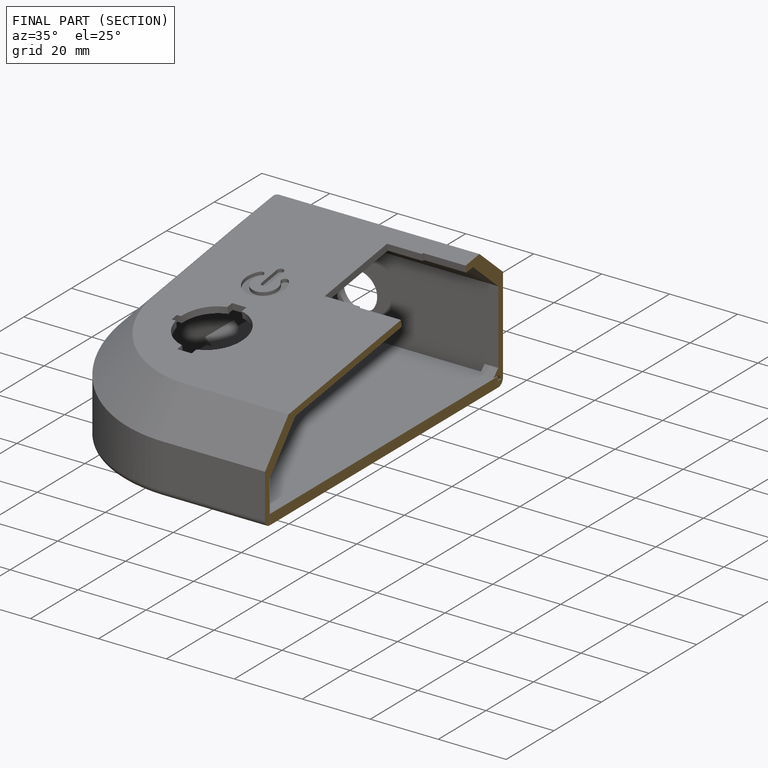
[diagram: finished part — half-section view (interior)]
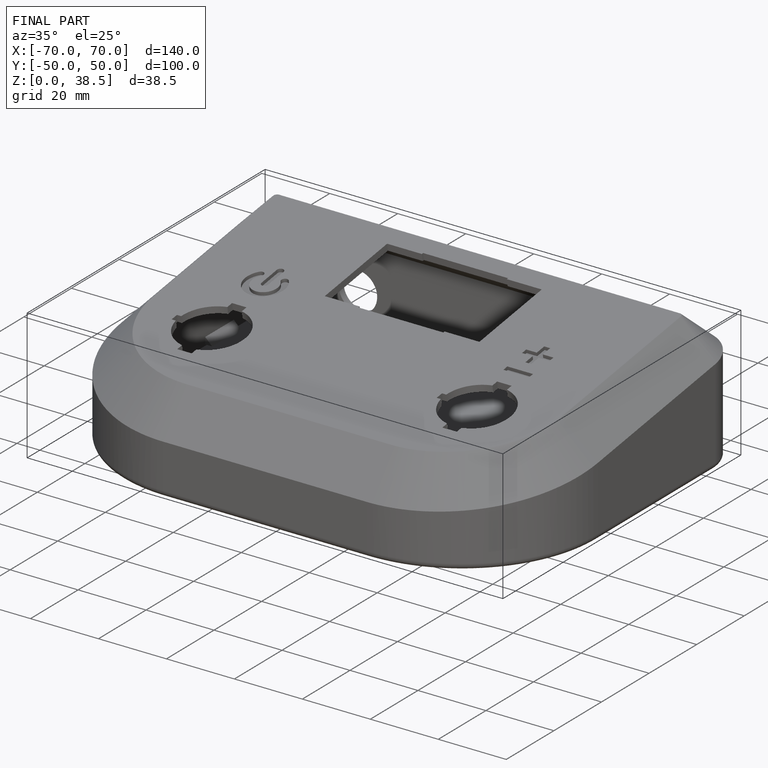
[diagram: finished part — iso view with bounding-box wireframe]
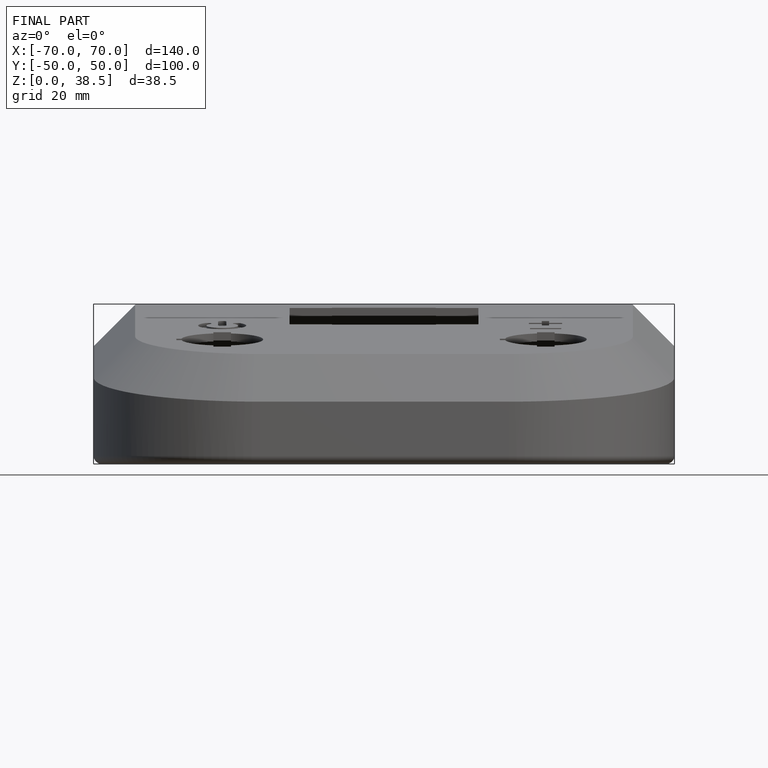
[diagram: finished part — front view with bounding-box wireframe]
